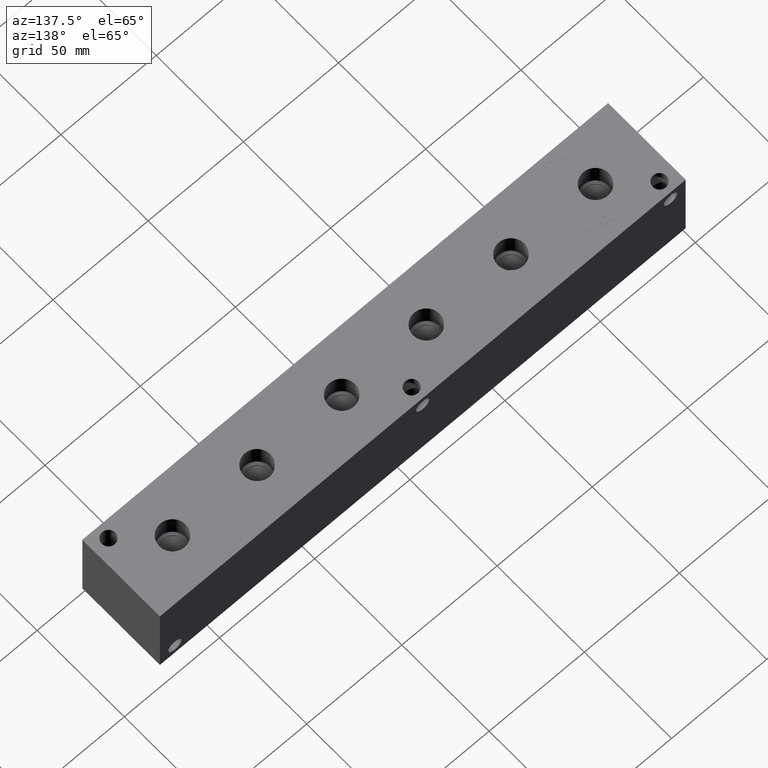
[diagram: clean part render]
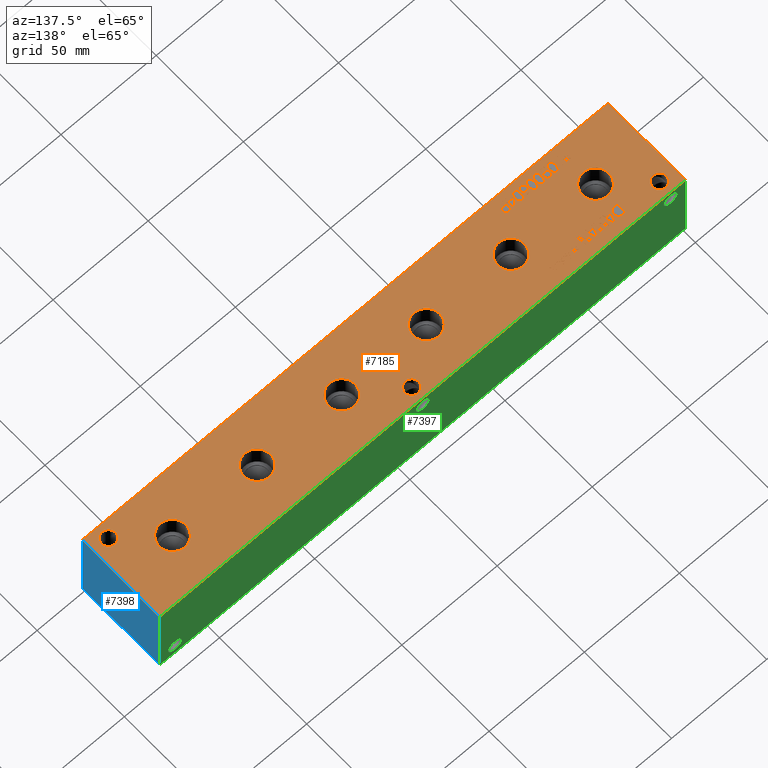
[diagram: same view with three faces highlighted in distinct colors, each labeled with its STEP entity id]
A machine part, auxiliary view with three faces highlighted in distinct colors.
Their STEP definitions:

[orange] entity #7185 — the highlighted planar face has unit normal (0, 0, 1).
#74=CIRCLE('',#7478,6.9342);
#75=CIRCLE('',#7479,6.9342);
#76=CIRCLE('',#7480,6.9342);
#77=CIRCLE('',#7481,6.9342);
#78=CIRCLE('',#7482,6.9342);
#79=CIRCLE('',#7483,6.9342);
#80=CIRCLE('',#7484,6.9342);
#81=CIRCLE('',#7485,6.9342);
#82=CIRCLE('',#7486,6.9342);
#83=CIRCLE('',#7487,6.9342);
#84=CIRCLE('',#7488,6.9342);
#85=CIRCLE('',#7489,6.9342);
#86=CIRCLE('',#7490,3.5687);
#87=CIRCLE('',#7491,3.5687);
#88=CIRCLE('',#7492,3.5687);
#89=CIRCLE('',#7493,3.5687);
#90=CIRCLE('',#7494,3.5687);
#91=CIRCLE('',#7495,3.5687);
#184=FACE_BOUND('',#1010,.T.);
#185=FACE_BOUND('',#1011,.T.);
#186=FACE_BOUND('',#1012,.T.);
#187=FACE_BOUND('',#1013,.T.);
#188=FACE_BOUND('',#1014,.T.);
#189=FACE_BOUND('',#1015,.T.);
#190=FACE_BOUND('',#1016,.T.);
#191=FACE_BOUND('',#1017,.T.);
#192=FACE_BOUND('',#1018,.T.);
#193=FACE_BOUND('',#1019,.T.);
#194=FACE_BOUND('',#1020,.T.);
#195=FACE_BOUND('',#1021,.T.);
#196=FACE_BOUND('',#1022,.T.);
#197=FACE_BOUND('',#1023,.T.);
#198=FACE_BOUND('',#1024,.T.);
#199=FACE_BOUND('',#1025,.T.);
#200=FACE_BOUND('',#1026,.T.);
#201=FACE_BOUND('',#1027,.T.);
#202=FACE_BOUND('',#1028,.T.);
#203=FACE_BOUND('',#1029,.T.);
#204=FACE_BOUND('',#1030,.T.);
#205=FACE_BOUND('',#1031,.T.);
#206=FACE_BOUND('',#1032,.T.);
#207=FACE_BOUND('',#1033,.T.);
#208=FACE_BOUND('',#1034,.T.);
#209=FACE_BOUND('',#1035,.T.);
#210=FACE_BOUND('',#1036,.T.);
#211=FACE_BOUND('',#1037,.T.);
#303=PLANE('',#7477);
#624=FACE_OUTER_BOUND('',#1009,.T.);
#1009=EDGE_LOOP('',(#5333,#5334,#5335,#5336));
#1010=EDGE_LOOP('',(#5337,#5338,#5339,#5340,#5341,#5342,#5343,#5344,#5345));
#1011=EDGE_LOOP('',(#5346,#5347,#5348,#5349,#5350,#5351,#5352,#5353,#5354,
#5355,#5356));
#1012=EDGE_LOOP('',(#5357,#5358,#5359,#5360));
#1013=EDGE_LOOP('',(#5361,#5362,#5363,#5364,#5365,#5366,#5367,#5368,#5369,
#5370,#5371,#5372,#5373,#5374));
#1014=EDGE_LOOP('',(#5375,#5376,#5377,#5378));
#1015=EDGE_LOOP('',(#5379,#5380,#5381,#5382));
#1016=EDGE_LOOP('',(#5383,#5384,#5385,#5386,#5387,#5388,#5389,#5390,#5391,
#5392,#5393,#5394,#5395,#5396));
#1017=EDGE_LOOP('',(#5397,#5398,#5399,#5400));
#1018=EDGE_LOOP('',(#5401,#5402,#5403,#5404,#5405,#5406,#5407,#5408,#5409,
#5410,#5411,#5412,#5413,#5414,#5415,#5416,#5417,#5418));
#1019=EDGE_LOOP('',(#5419,#5420,#5421,#5422,#5423,#5424,#5425,#5426,#5427,
#5428,#5429,#5430));
#1020=EDGE_LOOP('',(#5431,#5432));
#1021=EDGE_LOOP('',(#5433,#5434));
#1022=EDGE_LOOP('',(#5435,#5436));
#1023=EDGE_LOOP('',(#5437,#5438));
#1024=EDGE_LOOP('',(#5439,#5440));
#1025=EDGE_LOOP('',(#5441,#5442));
#1026=EDGE_LOOP('',(#5443,#5444));
#1027=EDGE_LOOP('',(#5445,#5446));
#1028=EDGE_LOOP('',(#5447,#5448));
#1029=EDGE_LOOP('',(#5449,#5450,#5451,#5452,#5453,#5454,#5455,#5456,#5457,
#5458,#5459,#5460,#5461,#5462,#5463,#5464,#5465,#5466));
#1030=EDGE_LOOP('',(#5467,#5468,#5469,#5470,#5471,#5472,#5473,#5474,#5475,
#5476,#5477,#5478,#5479,#5480,#5481,#5482,#5483,#5484));
#1031=EDGE_LOOP('',(#5485,#5486,#5487,#5488,#5489,#5490,#5491,#5492,#5493,
#5494));
#1032=EDGE_LOOP('',(#5495,#5496,#5497,#5498,#5499,#5500,#5501,#5502));
#1033=EDGE_LOOP('',(#5503,#5504,#5505,#5506,#5507,#5508,#5509));
#1034=EDGE_LOOP('',(#5510,#5511,#5512,#5513,#5514,#5515,#5516,#5517));
#1035=EDGE_LOOP('',(#5518,#5519,#5520,#5521,#5522,#5523,#5524,#5525,#5526,
#5527,#5528,#5529,#5530));
#1036=EDGE_LOOP('',(#5531,#5532,#5533,#5534,#5535,#5536,#5537,#5538,#5539,
#5540,#5541,#5542,#5543,#5544,#5545,#5546,#5547,#5548));
#1037=EDGE_LOOP('',(#5549,#5550,#5551,#5552,#5553,#5554,#5555,#5556,#5557,
#5558,#5559,#5560,#5561,#5562,#5563,#5564,#5565,#5566));
#1300=LINE('',#9397,#1989);
#1303=LINE('',#9403,#1992);
#1306=LINE('',#9409,#1995);
#1309=LINE('',#9415,#1998);
#1312=LINE('',#9421,#2001);
#1325=LINE('',#9482,#2014);
#1329=LINE('',#9490,#2018);
#1332=LINE('',#9496,#2021);
#1335=LINE('',#9502,#2024);
#1338=LINE('',#9508,#2027);
#1341=LINE('',#9514,#2030);
#1344=LINE('',#9520,#2033);
#1347=LINE('',#9526,#2036);
#1350=LINE('',#9532,#2039);
#1353=LINE('',#9538,#2042);
#1356=LINE('',#9543,#2045);
#1383=LINE('',#10008,#2072);
#1386=LINE('',#10014,#2075);
#1432=LINE('',#10840,#2121);
#1435=LINE('',#10846,#2124);
#1456=LINE('',#11213,#2145);
#1460=LINE('',#11221,#2149);
#1463=LINE('',#11227,#2152);
#1466=LINE('',#11233,#2155);
#1469=LINE('',#11239,#2158);
#1472=LINE('',#11245,#2161);
#1475=LINE('',#11251,#2164);
#1478=LINE('',#11257,#2167);
#1481=LINE('',#11263,#2170);
#1484=LINE('',#11269,#2173);
#1487=LINE('',#11275,#2176);
#1490=LINE('',#11281,#2179);
#1493=LINE('',#11287,#2182);
#1496=LINE('',#11293,#2185);
#1499=LINE('',#11299,#2188);
#1502=LINE('',#11305,#2191);
#1505=LINE('',#11311,#2194);
#1508=LINE('',#11316,#2197);
#1510=LINE('',#11322,#2199);
#1514=LINE('',#11330,#2203);
#1517=LINE('',#11336,#2206);
#1520=LINE('',#11342,#2209);
#1523=LINE('',#11348,#2212);
#1529=LINE('',#11411,#2218);
#1532=LINE('',#11417,#2221);
#1536=LINE('',#11460,#2225);
#1537=LINE('',#11462,#2226);
#1538=LINE('',#11464,#2227);
#1539=LINE('',#11465,#2228);
#1540=LINE('',#11504,#2229);
#1541=LINE('',#11506,#2230);
#1542=LINE('',#11508,#2231);
#1543=LINE('',#11510,#2232);
#1544=LINE('',#11512,#2233);
#1545=LINE('',#11514,#2234);
#1546=LINE('',#11516,#2235);
#1547=LINE('',#11518,#2236);
#1548=LINE('',#11520,#2237);
#1549=LINE('',#11522,#2238);
#1550=LINE('',#11524,#2239);
#1551=LINE('',#11526,#2240);
#1552=LINE('',#11528,#2241);
#1553=LINE('',#11530,#2242);
#1554=LINE('',#11532,#2243);
#1555=LINE('',#11534,#2244);
#1556=LINE('',#11536,#2245);
#1557=LINE('',#11537,#2246);
#1558=LINE('',#11540,#2247);
#1559=LINE('',#11542,#2248);
#1560=LINE('',#11544,#2249);
#1561=LINE('',#11546,#2250);
#1562=LINE('',#11548,#2251);
#1563=LINE('',#11550,#2252);
#1564=LINE('',#11552,#2253);
#1565=LINE('',#11554,#2254);
#1566=LINE('',#11556,#2255);
#1567=LINE('',#11558,#2256);
#1568=LINE('',#11560,#2257);
#1569=LINE('',#11562,#2258);
#1570=LINE('',#11564,#2259);
#1571=LINE('',#11566,#2260);
#1572=LINE('',#11568,#2261);
#1573=LINE('',#11570,#2262);
#1574=LINE('',#11572,#2263);
#1575=LINE('',#11573,#2264);
#1576=LINE('',#11576,#2265);
#1577=LINE('',#11578,#2266);
#1578=LINE('',#11580,#2267);
#1579=LINE('',#11582,#2268);
#1580=LINE('',#11584,#2269);
#1581=LINE('',#11586,#2270);
#1582=LINE('',#11588,#2271);
#1583=LINE('',#11590,#2272);
#1584=LINE('',#11592,#2273);
#1585=LINE('',#11593,#2274);
#1586=LINE('',#11596,#2275);
#1587=LINE('',#11598,#2276);
#1588=LINE('',#11600,#2277);
#1589=LINE('',#11602,#2278);
#1590=LINE('',#11604,#2279);
#1591=LINE('',#11606,#2280);
#1592=LINE('',#11608,#2281);
#1593=LINE('',#11609,#2282);
#1594=LINE('',#11627,#2283);
#1595=LINE('',#11629,#2284);
#1596=LINE('',#11631,#2285);
#1597=LINE('',#11638,#2286);
#1598=LINE('',#11640,#2287);
#1599=LINE('',#11642,#2288);
#1600=LINE('',#11644,#2289);
#1601=LINE('',#11646,#2290);
#1602=LINE('',#11648,#2291);
#1603=LINE('',#11650,#2292);
#1604=LINE('',#11651,#2293);
#1605=LINE('',#11654,#2294);
#1606=LINE('',#11656,#2295);
#1607=LINE('',#11658,#2296);
#1608=LINE('',#11660,#2297);
#1609=LINE('',#11662,#2298);
#1610=LINE('',#11664,#2299);
#1611=LINE('',#11666,#2300);
#1612=LINE('',#11668,#2301);
#1613=LINE('',#11670,#2302);
#1614=LINE('',#11672,#2303);
#1615=LINE('',#11674,#2304);
#1616=LINE('',#11676,#2305);
#1617=LINE('',#11677,#2306);
#1618=LINE('',#11680,#2307);
#1619=LINE('',#11682,#2308);
#1620=LINE('',#11684,#2309);
#1621=LINE('',#11686,#2310);
#1622=LINE('',#11688,#2311);
#1623=LINE('',#11690,#2312);
#1624=LINE('',#11692,#2313);
#1625=LINE('',#11694,#2314);
#1626=LINE('',#11696,#2315);
#1627=LINE('',#11698,#2316);
#1628=LINE('',#11700,#2317);
#1629=LINE('',#11702,#2318);
#1630=LINE('',#11704,#2319);
#1631=LINE('',#11706,#2320);
#1632=LINE('',#11708,#2321);
#1633=LINE('',#11710,#2322);
#1634=LINE('',#11712,#2323);
#1635=LINE('',#11713,#2324);
#1636=LINE('',#11716,#2325);
#1637=LINE('',#11718,#2326);
#1638=LINE('',#11720,#2327);
#1639=LINE('',#11722,#2328);
#1640=LINE('',#11724,#2329);
#1641=LINE('',#11726,#2330);
#1642=LINE('',#11728,#2331);
#1643=LINE('',#11730,#2332);
#1644=LINE('',#11732,#2333);
#1645=LINE('',#11734,#2334);
#1646=LINE('',#11736,#2335);
#1647=LINE('',#11738,#2336);
#1648=LINE('',#11740,#2337);
#1649=LINE('',#11742,#2338);
#1650=LINE('',#11744,#2339);
#1651=LINE('',#11746,#2340);
#1652=LINE('',#11748,#2341);
#1653=LINE('',#11749,#2342);
#1989=VECTOR('',#7826,10.);
#1992=VECTOR('',#7831,10.);
#1995=VECTOR('',#7836,10.);
#1998=VECTOR('',#7841,10.);
#2001=VECTOR('',#7846,10.);
#2014=VECTOR('',#7869,10.);
#2018=VECTOR('',#7875,10.);
#2021=VECTOR('',#7880,10.);
#2024=VECTOR('',#7885,10.);
#2027=VECTOR('',#7890,10.);
#2030=VECTOR('',#7895,10.);
#2033=VECTOR('',#7900,10.);
#2036=VECTOR('',#7905,10.);
#2039=VECTOR('',#7910,10.);
#2042=VECTOR('',#7915,10.);
#2045=VECTOR('',#7920,10.);
#2072=VECTOR('',#7953,10.);
#2075=VECTOR('',#7958,10.);
#2121=VECTOR('',#8012,10.);
#2124=VECTOR('',#8017,10.);
#2145=VECTOR('',#8044,10.);
#2149=VECTOR('',#8050,10.);
#2152=VECTOR('',#8055,10.);
#2155=VECTOR('',#8060,10.);
#2158=VECTOR('',#8065,10.);
#2161=VECTOR('',#8070,10.);
#2164=VECTOR('',#8075,10.);
#2167=VECTOR('',#8080,10.);
#2170=VECTOR('',#8085,10.);
#2173=VECTOR('',#8090,10.);
#2176=VECTOR('',#8095,10.);
#2179=VECTOR('',#8100,10.);
#2182=VECTOR('',#8105,10.);
#2185=VECTOR('',#8110,10.);
#2188=VECTOR('',#8115,10.);
#2191=VECTOR('',#8120,10.);
#2194=VECTOR('',#8125,10.);
#2197=VECTOR('',#8130,10.);
#2199=VECTOR('',#8136,10.);
#2203=VECTOR('',#8142,10.);
#2206=VECTOR('',#8147,10.);
#2209=VECTOR('',#8152,10.);
#2212=VECTOR('',#8157,10.);
#2218=VECTOR('',#8165,10.);
#2221=VECTOR('',#8170,10.);
#2225=VECTOR('',#8178,10.);
#2226=VECTOR('',#8179,10.);
#2227=VECTOR('',#8180,10.);
#2228=VECTOR('',#8181,10.);
#2229=VECTOR('',#8218,10.);
#2230=VECTOR('',#8219,10.);
#2231=VECTOR('',#8220,10.);
#2232=VECTOR('',#8221,10.);
#2233=VECTOR('',#8222,10.);
#2234=VECTOR('',#8223,10.);
#2235=VECTOR('',#8224,10.);
#2236=VECTOR('',#8225,10.);
#2237=VECTOR('',#8226,10.);
#2238=VECTOR('',#8227,10.);
#2239=VECTOR('',#8228,10.);
#2240=VECTOR('',#8229,10.);
#2241=VECTOR('',#8230,10.);
#2242=VECTOR('',#8231,10.);
#2243=VECTOR('',#8232,10.);
#2244=VECTOR('',#8233,10.);
#2245=VECTOR('',#8234,10.);
#2246=VECTOR('',#8235,10.);
#2247=VECTOR('',#8236,10.);
#2248=VECTOR('',#8237,10.);
#2249=VECTOR('',#8238,10.);
#2250=VECTOR('',#8239,10.);
#2251=VECTOR('',#8240,10.);
#2252=VECTOR('',#8241,10.);
#2253=VECTOR('',#8242,10.);
#2254=VECTOR('',#8243,10.);
#2255=VECTOR('',#8244,10.);
#2256=VECTOR('',#8245,10.);
#2257=VECTOR('',#8246,10.);
#2258=VECTOR('',#8247,10.);
#2259=VECTOR('',#8248,10.);
#2260=VECTOR('',#8249,10.);
#2261=VECTOR('',#8250,10.);
#2262=VECTOR('',#8251,10.);
#2263=VECTOR('',#8252,10.);
#2264=VECTOR('',#8253,10.);
#2265=VECTOR('',#8254,10.);
#2266=VECTOR('',#8255,10.);
#2267=VECTOR('',#8256,10.);
#2268=VECTOR('',#8257,10.);
#2269=VECTOR('',#8258,10.);
#2270=VECTOR('',#8259,10.);
#2271=VECTOR('',#8260,10.);
#2272=VECTOR('',#8261,10.);
#2273=VECTOR('',#8262,10.);
#2274=VECTOR('',#8263,10.);
#2275=VECTOR('',#8264,10.);
#2276=VECTOR('',#8265,10.);
#2277=VECTOR('',#8266,10.);
#2278=VECTOR('',#8267,10.);
#2279=VECTOR('',#8268,10.);
#2280=VECTOR('',#8269,10.);
#2281=VECTOR('',#8270,10.);
#2282=VECTOR('',#8271,10.);
#2283=VECTOR('',#8272,10.);
#2284=VECTOR('',#8273,10.);
#2285=VECTOR('',#8274,10.);
#2286=VECTOR('',#8275,10.);
#2287=VECTOR('',#8276,10.);
#2288=VECTOR('',#8277,10.);
#2289=VECTOR('',#8278,10.);
#2290=VECTOR('',#8279,10.);
#2291=VECTOR('',#8280,10.);
#2292=VECTOR('',#8281,10.);
#2293=VECTOR('',#8282,10.);
#2294=VECTOR('',#8283,10.);
#2295=VECTOR('',#8284,10.);
#2296=VECTOR('',#8285,10.);
#2297=VECTOR('',#8286,10.);
#2298=VECTOR('',#8287,10.);
#2299=VECTOR('',#8288,10.);
#2300=VECTOR('',#8289,10.);
#2301=VECTOR('',#8290,10.);
#2302=VECTOR('',#8291,10.);
#2303=VECTOR('',#8292,10.);
#2304=VECTOR('',#8293,10.);
#2305=VECTOR('',#8294,10.);
#2306=VECTOR('',#8295,10.);
#2307=VECTOR('',#8296,10.);
#2308=VECTOR('',#8297,10.);
#2309=VECTOR('',#8298,10.);
#2310=VECTOR('',#8299,10.);
#2311=VECTOR('',#8300,10.);
#2312=VECTOR('',#8301,10.);
#2313=VECTOR('',#8302,10.);
#2314=VECTOR('',#8303,10.);
#2315=VECTOR('',#8304,10.);
#2316=VECTOR('',#8305,10.);
#2317=VECTOR('',#8306,10.);
#2318=VECTOR('',#8307,10.);
#2319=VECTOR('',#8308,10.);
#2320=VECTOR('',#8309,10.);
#2321=VECTOR('',#8310,10.);
#2322=VECTOR('',#8311,10.);
#2323=VECTOR('',#8312,10.);
#2324=VECTOR('',#8313,10.);
#2325=VECTOR('',#8314,10.);
#2326=VECTOR('',#8315,10.);
#2327=VECTOR('',#8316,10.);
#2328=VECTOR('',#8317,10.);
#2329=VECTOR('',#8318,10.);
#2330=VECTOR('',#8319,10.);
#2331=VECTOR('',#8320,10.);
#2332=VECTOR('',#8321,10.);
#2333=VECTOR('',#8322,10.);
#2334=VECTOR('',#8323,10.);
#2335=VECTOR('',#8324,10.);
#2336=VECTOR('',#8325,10.);
#2337=VECTOR('',#8326,10.);
#2338=VECTOR('',#8327,10.);
#2339=VECTOR('',#8328,10.);
#2340=VECTOR('',#8329,10.);
#2341=VECTOR('',#8330,10.);
#2342=VECTOR('',#8331,10.);
#2670=B_SPLINE_CURVE_WITH_KNOTS('',2,(#9364,#9365,#9366,#9367),
 .UNSPECIFIED.,.F.,.F.,(3,1,3),(0.,1.,2.),.UNSPECIFIED.);
#2672=B_SPLINE_CURVE_WITH_KNOTS('',2,(#9385,#9386,#9387,#9388),
 .UNSPECIFIED.,.F.,.F.,(3,1,3),(0.,1.,2.),.UNSPECIFIED.);
#2674=B_SPLINE_CURVE_WITH_KNOTS('',2,(#9434,#9435,#9436,#9437),
 .UNSPECIFIED.,.F.,.F.,(3,1,3),(0.,1.,2.),.UNSPECIFIED.);
#2676=B_SPLINE_CURVE_WITH_KNOTS('',2,(#9452,#9453,#9454,#9455),
 .UNSPECIFIED.,.F.,.F.,(3,1,3),(0.,1.,2.),.UNSPECIFIED.);
#2694=B_SPLINE_CURVE_WITH_KNOTS('',2,(#9708,#9709,#9710,#9711),
 .UNSPECIFIED.,.F.,.F.,(3,1,3),(0.,1.,2.),.UNSPECIFIED.);
#2696=B_SPLINE_CURVE_WITH_KNOTS('',2,(#9729,#9730,#9731,#9732),
 .UNSPECIFIED.,.F.,.F.,(3,1,3),(0.,1.,2.),.UNSPECIFIED.);
#2698=B_SPLINE_CURVE_WITH_KNOTS('',2,(#9748,#9749,#9750,#9751),
 .UNSPECIFIED.,.F.,.F.,(3,1,3),(0.,1.,2.),.UNSPECIFIED.);
#2700=B_SPLINE_CURVE_WITH_KNOTS('',2,(#9766,#9767,#9768,#9769),
 .UNSPECIFIED.,.F.,.F.,(3,1,3),(0.,1.,2.),.UNSPECIFIED.);
#2716=B_SPLINE_CURVE_WITH_KNOTS('',2,(#9918,#9919,#9920,#9921),
 .UNSPECIFIED.,.F.,.F.,(3,1,3),(0.,1.,2.),.UNSPECIFIED.);
#2718=B_SPLINE_CURVE_WITH_KNOTS('',2,(#9939,#9940,#9941,#9942),
 .UNSPECIFIED.,.F.,.F.,(3,1,3),(0.,1.,2.),.UNSPECIFIED.);
#2720=B_SPLINE_CURVE_WITH_KNOTS('',2,(#9958,#9959,#9960,#9961),
 .UNSPECIFIED.,.F.,.F.,(3,1,3),(0.,1.,2.),.UNSPECIFIED.);
#2722=B_SPLINE_CURVE_WITH_KNOTS('',2,(#9977,#9978,#9979,#9980),
 .UNSPECIFIED.,.F.,.F.,(3,1,3),(0.,1.,2.),.UNSPECIFIED.);
#2724=B_SPLINE_CURVE_WITH_KNOTS('',2,(#9996,#9997,#9998,#9999),
 .UNSPECIFIED.,.F.,.F.,(3,1,3),(0.,1.,2.),.UNSPECIFIED.);
#2726=B_SPLINE_CURVE_WITH_KNOTS('',2,(#10027,#10028,#10029,#10030),
 .UNSPECIFIED.,.F.,.F.,(3,1,3),(0.,1.,2.),.UNSPECIFIED.);
#2728=B_SPLINE_CURVE_WITH_KNOTS('',2,(#10046,#10047,#10048,#10049),
 .UNSPECIFIED.,.F.,.F.,(3,1,3),(0.,1.,2.),.UNSPECIFIED.);
#2730=B_SPLINE_CURVE_WITH_KNOTS('',2,(#10065,#10066,#10067,#10068),
 .UNSPECIFIED.,.F.,.F.,(3,1,3),(0.,1.,2.),.UNSPECIFIED.);
#2732=B_SPLINE_CURVE_WITH_KNOTS('',2,(#10084,#10085,#10086,#10087),
 .UNSPECIFIED.,.F.,.F.,(3,1,3),(0.,1.,2.),.UNSPECIFIED.);
#2734=B_SPLINE_CURVE_WITH_KNOTS('',2,(#10103,#10104,#10105,#10106),
 .UNSPECIFIED.,.F.,.F.,(3,1,3),(0.,1.,2.),.UNSPECIFIED.);
#2736=B_SPLINE_CURVE_WITH_KNOTS('',2,(#10122,#10123,#10124,#10125),
 .UNSPECIFIED.,.F.,.F.,(3,1,3),(0.,1.,2.),.UNSPECIFIED.);
#2738=B_SPLINE_CURVE_WITH_KNOTS('',2,(#10140,#10141,#10142,#10143),
 .UNSPECIFIED.,.F.,.F.,(3,1,3),(0.,1.,2.),.UNSPECIFIED.);
#2756=B_SPLINE_CURVE_WITH_KNOTS('',2,(#10311,#10312,#10313,#10314),
 .UNSPECIFIED.,.F.,.F.,(3,1,3),(0.,1.,2.),.UNSPECIFIED.);
#2758=B_SPLINE_CURVE_WITH_KNOTS('',2,(#10332,#10333,#10334,#10335),
 .UNSPECIFIED.,.F.,.F.,(3,1,3),(0.,1.,2.),.UNSPECIFIED.);
#2760=B_SPLINE_CURVE_WITH_KNOTS('',2,(#10351,#10352,#10353,#10354),
 .UNSPECIFIED.,.F.,.F.,(3,1,3),(0.,1.,2.),.UNSPECIFIED.);
#2762=B_SPLINE_CURVE_WITH_KNOTS('',2,(#10369,#10370,#10371,#10372),
 .UNSPECIFIED.,.F.,.F.,(3,1,3),(0.,1.,2.),.UNSPECIFIED.);
#2780=B_SPLINE_CURVE_WITH_KNOTS('',2,(#10540,#10541,#10542,#10543),
 .UNSPECIFIED.,.F.,.F.,(3,1,3),(0.,1.,2.),.UNSPECIFIED.);
#2782=B_SPLINE_CURVE_WITH_KNOTS('',2,(#10561,#10562,#10563,#10564),
 .UNSPECIFIED.,.F.,.F.,(3,1,3),(0.,1.,2.),.UNSPECIFIED.);
#2784=B_SPLINE_CURVE_WITH_KNOTS('',2,(#10580,#10581,#10582,#10583),
 .UNSPECIFIED.,.F.,.F.,(3,1,3),(0.,1.,2.),.UNSPECIFIED.);
#2786=B_SPLINE_CURVE_WITH_KNOTS('',2,(#10598,#10599,#10600,#10601),
 .UNSPECIFIED.,.F.,.F.,(3,1,3),(0.,1.,2.),.UNSPECIFIED.);
#2802=B_SPLINE_CURVE_WITH_KNOTS('',2,(#10750,#10751,#10752,#10753),
 .UNSPECIFIED.,.F.,.F.,(3,1,3),(0.,1.,2.),.UNSPECIFIED.);
#2804=B_SPLINE_CURVE_WITH_KNOTS('',2,(#10771,#10772,#10773,#10774),
 .UNSPECIFIED.,.F.,.F.,(3,1,3),(0.,1.,2.),.UNSPECIFIED.);
#2806=B_SPLINE_CURVE_WITH_KNOTS('',2,(#10790,#10791,#10792,#10793),
 .UNSPECIFIED.,.F.,.F.,(3,1,3),(0.,1.,2.),.UNSPECIFIED.);
#2808=B_SPLINE_CURVE_WITH_KNOTS('',2,(#10809,#10810,#10811,#10812),
 .UNSPECIFIED.,.F.,.F.,(3,1,3),(0.,1.,2.),.UNSPECIFIED.);
#2810=B_SPLINE_CURVE_WITH_KNOTS('',2,(#10828,#10829,#10830,#10831),
 .UNSPECIFIED.,.F.,.F.,(3,1,3),(0.,1.,2.),.UNSPECIFIED.);
#2812=B_SPLINE_CURVE_WITH_KNOTS('',2,(#10859,#10860,#10861,#10862),
 .UNSPECIFIED.,.F.,.F.,(3,1,3),(0.,1.,2.),.UNSPECIFIED.);
#2814=B_SPLINE_CURVE_WITH_KNOTS('',2,(#10878,#10879,#10880,#10881),
 .UNSPECIFIED.,.F.,.F.,(3,1,3),(0.,1.,2.),.UNSPECIFIED.);
#2816=B_SPLINE_CURVE_WITH_KNOTS('',2,(#10897,#10898,#10899,#10900),
 .UNSPECIFIED.,.F.,.F.,(3,1,3),(0.,1.,2.),.UNSPECIFIED.);
#2818=B_SPLINE_CURVE_WITH_KNOTS('',2,(#10916,#10917,#10918,#10919),
 .UNSPECIFIED.,.F.,.F.,(3,1,3),(0.,1.,2.),.UNSPECIFIED.);
#2820=B_SPLINE_CURVE_WITH_KNOTS('',2,(#10935,#10936,#10937,#10938),
 .UNSPECIFIED.,.F.,.F.,(3,1,3),(0.,1.,2.),.UNSPECIFIED.);
#2822=B_SPLINE_CURVE_WITH_KNOTS('',2,(#10954,#10955,#10956,#10957),
 .UNSPECIFIED.,.F.,.F.,(3,1,3),(0.,1.,2.),.UNSPECIFIED.);
#2824=B_SPLINE_CURVE_WITH_KNOTS('',2,(#10972,#10973,#10974,#10975),
 .UNSPECIFIED.,.F.,.F.,(3,1,3),(0.,1.,2.),.UNSPECIFIED.);
#2842=B_SPLINE_CURVE_WITH_KNOTS('',2,(#11143,#11144,#11145,#11146),
 .UNSPECIFIED.,.F.,.F.,(3,1,3),(0.,1.,2.),.UNSPECIFIED.);
#2844=B_SPLINE_CURVE_WITH_KNOTS('',2,(#11164,#11165,#11166,#11167),
 .UNSPECIFIED.,.F.,.F.,(3,1,3),(0.,1.,2.),.UNSPECIFIED.);
#2846=B_SPLINE_CURVE_WITH_KNOTS('',2,(#11183,#11184,#11185,#11186),
 .UNSPECIFIED.,.F.,.F.,(3,1,3),(0.,1.,2.),.UNSPECIFIED.);
#2848=B_SPLINE_CURVE_WITH_KNOTS('',2,(#11201,#11202,#11203,#11204),
 .UNSPECIFIED.,.F.,.F.,(3,1,3),(0.,1.,2.),.UNSPECIFIED.);
#2850=B_SPLINE_CURVE_WITH_KNOTS('',2,(#11361,#11362,#11363,#11364),
 .UNSPECIFIED.,.F.,.F.,(3,1,3),(0.,1.,2.),.UNSPECIFIED.);
#2852=B_SPLINE_CURVE_WITH_KNOTS('',2,(#11380,#11381,#11382,#11383),
 .UNSPECIFIED.,.F.,.F.,(3,1,3),(0.,1.,2.),.UNSPECIFIED.);
#2854=B_SPLINE_CURVE_WITH_KNOTS('',2,(#11399,#11400,#11401,#11402),
 .UNSPECIFIED.,.F.,.F.,(3,1,3),(0.,1.,2.),.UNSPECIFIED.);
#2856=B_SPLINE_CURVE_WITH_KNOTS('',2,(#11430,#11431,#11432,#11433),
 .UNSPECIFIED.,.F.,.F.,(3,1,3),(0.,1.,2.),.UNSPECIFIED.);
#2858=B_SPLINE_CURVE_WITH_KNOTS('',2,(#11448,#11449,#11450,#11451),
 .UNSPECIFIED.,.F.,.F.,(3,1,3),(0.,1.,2.),.UNSPECIFIED.);
#2860=B_SPLINE_CURVE_WITH_KNOTS('',2,(#11612,#11613,#11614,#11615),
 .UNSPECIFIED.,.F.,.F.,(3,1,3),(0.,1.,2.),.UNSPECIFIED.);
#2861=B_SPLINE_CURVE_WITH_KNOTS('',2,(#11617,#11618,#11619,#11620),
 .UNSPECIFIED.,.F.,.F.,(3,1,3),(0.,1.,2.),.UNSPECIFIED.);
#2862=B_SPLINE_CURVE_WITH_KNOTS('',2,(#11622,#11623,#11624,#11625),
 .UNSPECIFIED.,.F.,.F.,(3,1,3),(0.,1.,2.),.UNSPECIFIED.);
#2863=B_SPLINE_CURVE_WITH_KNOTS('',2,(#11632,#11633,#11634,#11635),
 .UNSPECIFIED.,.F.,.F.,(3,1,3),(0.,1.,2.),.UNSPECIFIED.);
#2890=VERTEX_POINT('',#9362);
#2891=VERTEX_POINT('',#9363);
#2894=VERTEX_POINT('',#9384);
#2896=VERTEX_POINT('',#9396);
#2898=VERTEX_POINT('',#9402);
#2900=VERTEX_POINT('',#9408);
#2902=VERTEX_POINT('',#9414);
#2904=VERTEX_POINT('',#9420);
#2906=VERTEX_POINT('',#9433);
#2914=VERTEX_POINT('',#9480);
#2915=VERTEX_POINT('',#9481);
#2918=VERTEX_POINT('',#9489);
#2920=VERTEX_POINT('',#9495);
#2922=VERTEX_POINT('',#9501);
#2924=VERTEX_POINT('',#9507);
#2926=VERTEX_POINT('',#9513);
#2928=VERTEX_POINT('',#9519);
#2930=VERTEX_POINT('',#9525);
#2932=VERTEX_POINT('',#9531);
#2934=VERTEX_POINT('',#9537);
#2952=VERTEX_POINT('',#9706);
#2953=VERTEX_POINT('',#9707);
#2956=VERTEX_POINT('',#9728);
#2958=VERTEX_POINT('',#9747);
#2974=VERTEX_POINT('',#9916);
#2975=VERTEX_POINT('',#9917);
#2978=VERTEX_POINT('',#9938);
#2980=VERTEX_POINT('',#9957);
#2982=VERTEX_POINT('',#9976);
#2984=VERTEX_POINT('',#9995);
#2986=VERTEX_POINT('',#10007);
#2988=VERTEX_POINT('',#10013);
#2990=VERTEX_POINT('',#10026);
#2992=VERTEX_POINT('',#10045);
#2994=VERTEX_POINT('',#10064);
#2996=VERTEX_POINT('',#10083);
#2998=VERTEX_POINT('',#10102);
#3000=VERTEX_POINT('',#10121);
#3018=VERTEX_POINT('',#10309);
#3019=VERTEX_POINT('',#10310);
#3022=VERTEX_POINT('',#10331);
#3024=VERTEX_POINT('',#10350);
#3042=VERTEX_POINT('',#10538);
#3043=VERTEX_POINT('',#10539);
#3046=VERTEX_POINT('',#10560);
#3048=VERTEX_POINT('',#10579);
#3064=VERTEX_POINT('',#10748);
#3065=VERTEX_POINT('',#10749);
#3068=VERTEX_POINT('',#10770);
#3070=VERTEX_POINT('',#10789);
#3072=VERTEX_POINT('',#10808);
#3074=VERTEX_POINT('',#10827);
#3076=VERTEX_POINT('',#10839);
#3078=VERTEX_POINT('',#10845);
#3080=VERTEX_POINT('',#10858);
#3082=VERTEX_POINT('',#10877);
#3084=VERTEX_POINT('',#10896);
#3086=VERTEX_POINT('',#10915);
#3088=VERTEX_POINT('',#10934);
#3090=VERTEX_POINT('',#10953);
#3108=VERTEX_POINT('',#11141);
#3109=VERTEX_POINT('',#11142);
#3112=VERTEX_POINT('',#11163);
#3114=VERTEX_POINT('',#11182);
#3116=VERTEX_POINT('',#11211);
#3117=VERTEX_POINT('',#11212);
#3120=VERTEX_POINT('',#11220);
#3122=VERTEX_POINT('',#11226);
#3124=VERTEX_POINT('',#11232);
#3126=VERTEX_POINT('',#11238);
#3128=VERTEX_POINT('',#11244);
#3130=VERTEX_POINT('',#11250);
#3132=VERTEX_POINT('',#11256);
#3134=VERTEX_POINT('',#11262);
#3136=VERTEX_POINT('',#11268);
#3138=VERTEX_POINT('',#11274);
#3140=VERTEX_POINT('',#11280);
#3142=VERTEX_POINT('',#11286);
#3144=VERTEX_POINT('',#11292);
#3146=VERTEX_POINT('',#11298);
#3148=VERTEX_POINT('',#11304);
#3150=VERTEX_POINT('',#11310);
#3152=VERTEX_POINT('',#11320);
#3153=VERTEX_POINT('',#11321);
#3156=VERTEX_POINT('',#11329);
#3158=VERTEX_POINT('',#11335);
#3160=VERTEX_POINT('',#11341);
#3162=VERTEX_POINT('',#11347);
#3164=VERTEX_POINT('',#11360);
#3166=VERTEX_POINT('',#11379);
#3168=VERTEX_POINT('',#11398);
#3170=VERTEX_POINT('',#11410);
#3172=VERTEX_POINT('',#11416);
#3174=VERTEX_POINT('',#11429);
#3176=VERTEX_POINT('',#11458);
#3177=VERTEX_POINT('',#11459);
#3178=VERTEX_POINT('',#11461);
#3179=VERTEX_POINT('',#11463);
#3180=VERTEX_POINT('',#11466);
#3181=VERTEX_POINT('',#11467);
#3182=VERTEX_POINT('',#11470);
#3183=VERTEX_POINT('',#11471);
#3184=VERTEX_POINT('',#11474);
#3185=VERTEX_POINT('',#11475);
#3186=VERTEX_POINT('',#11478);
#3187=VERTEX_POINT('',#11479);
#3188=VERTEX_POINT('',#11482);
#3189=VERTEX_POINT('',#11483);
#3190=VERTEX_POINT('',#11486);
#3191=VERTEX_POINT('',#11487);
#3192=VERTEX_POINT('',#11490);
#3193=VERTEX_POINT('',#11491);
#3194=VERTEX_POINT('',#11494);
#3195=VERTEX_POINT('',#11495);
#3196=VERTEX_POINT('',#11498);
#3197=VERTEX_POINT('',#11499);
#3198=VERTEX_POINT('',#11502);
#3199=VERTEX_POINT('',#11503);
#3200=VERTEX_POINT('',#11505);
#3201=VERTEX_POINT('',#11507);
#3202=VERTEX_POINT('',#11509);
#3203=VERTEX_POINT('',#11511);
#3204=VERTEX_POINT('',#11513);
#3205=VERTEX_POINT('',#11515);
#3206=VERTEX_POINT('',#11517);
#3207=VERTEX_POINT('',#11519);
#3208=VERTEX_POINT('',#11521);
#3209=VERTEX_POINT('',#11523);
#3210=VERTEX_POINT('',#11525);
#3211=VERTEX_POINT('',#11527);
#3212=VERTEX_POINT('',#11529);
#3213=VERTEX_POINT('',#11531);
#3214=VERTEX_POINT('',#11533);
#3215=VERTEX_POINT('',#11535);
#3216=VERTEX_POINT('',#11538);
#3217=VERTEX_POINT('',#11539);
#3218=VERTEX_POINT('',#11541);
#3219=VERTEX_POINT('',#11543);
#3220=VERTEX_POINT('',#11545);
#3221=VERTEX_POINT('',#11547);
#3222=VERTEX_POINT('',#11549);
#3223=VERTEX_POINT('',#11551);
#3224=VERTEX_POINT('',#11553);
#3225=VERTEX_POINT('',#11555);
#3226=VERTEX_POINT('',#11557);
#3227=VERTEX_POINT('',#11559);
#3228=VERTEX_POINT('',#11561);
#3229=VERTEX_POINT('',#11563);
#3230=VERTEX_POINT('',#11565);
#3231=VERTEX_POINT('',#11567);
#3232=VERTEX_POINT('',#11569);
#3233=VERTEX_POINT('',#11571);
#3234=VERTEX_POINT('',#11574);
#3235=VERTEX_POINT('',#11575);
#3236=VERTEX_POINT('',#11577);
#3237=VERTEX_POINT('',#11579);
#3238=VERTEX_POINT('',#11581);
#3239=VERTEX_POINT('',#11583);
#3240=VERTEX_POINT('',#11585);
#3241=VERTEX_POINT('',#11587);
#3242=VERTEX_POINT('',#11589);
#3243=VERTEX_POINT('',#11591);
#3244=VERTEX_POINT('',#11594);
#3245=VERTEX_POINT('',#11595);
#3246=VERTEX_POINT('',#11597);
#3247=VERTEX_POINT('',#11599);
#3248=VERTEX_POINT('',#11601);
#3249=VERTEX_POINT('',#11603);
#3250=VERTEX_POINT('',#11605);
#3251=VERTEX_POINT('',#11607);
#3252=VERTEX_POINT('',#11610);
#3253=VERTEX_POINT('',#11611);
#3254=VERTEX_POINT('',#11616);
#3255=VERTEX_POINT('',#11621);
#3256=VERTEX_POINT('',#11626);
#3257=VERTEX_POINT('',#11628);
#3258=VERTEX_POINT('',#11630);
#3259=VERTEX_POINT('',#11636);
#3260=VERTEX_POINT('',#11637);
#3261=VERTEX_POINT('',#11639);
#3262=VERTEX_POINT('',#11641);
#3263=VERTEX_POINT('',#11643);
#3264=VERTEX_POINT('',#11645);
#3265=VERTEX_POINT('',#11647);
#3266=VERTEX_POINT('',#11649);
#3267=VERTEX_POINT('',#11652);
#3268=VERTEX_POINT('',#11653);
#3269=VERTEX_POINT('',#11655);
#3270=VERTEX_POINT('',#11657);
#3271=VERTEX_POINT('',#11659);
#3272=VERTEX_POINT('',#11661);
#3273=VERTEX_POINT('',#11663);
#3274=VERTEX_POINT('',#11665);
#3275=VERTEX_POINT('',#11667);
#3276=VERTEX_POINT('',#11669);
#3277=VERTEX_POINT('',#11671);
#3278=VERTEX_POINT('',#11673);
#3279=VERTEX_POINT('',#11675);
#3280=VERTEX_POINT('',#11678);
#3281=VERTEX_POINT('',#11679);
#3282=VERTEX_POINT('',#11681);
#3283=VERTEX_POINT('',#11683);
#3284=VERTEX_POINT('',#11685);
#3285=VERTEX_POINT('',#11687);
#3286=VERTEX_POINT('',#11689);
#3287=VERTEX_POINT('',#11691);
#3288=VERTEX_POINT('',#11693);
#3289=VERTEX_POINT('',#11695);
#3290=VERTEX_POINT('',#11697);
#3291=VERTEX_POINT('',#11699);
#3292=VERTEX_POINT('',#11701);
#3293=VERTEX_POINT('',#11703);
#3294=VERTEX_POINT('',#11705);
#3295=VERTEX_POINT('',#11707);
#3296=VERTEX_POINT('',#11709);
#3297=VERTEX_POINT('',#11711);
#3298=VERTEX_POINT('',#11714);
#3299=VERTEX_POINT('',#11715);
#3300=VERTEX_POINT('',#11717);
#3301=VERTEX_POINT('',#11719);
#3302=VERTEX_POINT('',#11721);
#3303=VERTEX_POINT('',#11723);
#3304=VERTEX_POINT('',#11725);
#3305=VERTEX_POINT('',#11727);
#3306=VERTEX_POINT('',#11729);
#3307=VERTEX_POINT('',#11731);
#3308=VERTEX_POINT('',#11733);
#3309=VERTEX_POINT('',#11735);
#3310=VERTEX_POINT('',#11737);
#3311=VERTEX_POINT('',#11739);
#3312=VERTEX_POINT('',#11741);
#3313=VERTEX_POINT('',#11743);
#3314=VERTEX_POINT('',#11745);
#3315=VERTEX_POINT('',#11747);
#3587=EDGE_CURVE('',#2890,#2891,#2670,.T.);
#3591=EDGE_CURVE('',#2894,#2890,#2672,.T.);
#3594=EDGE_CURVE('',#2896,#2894,#1300,.T.);
#3597=EDGE_CURVE('',#2898,#2896,#1303,.T.);
#3600=EDGE_CURVE('',#2900,#2898,#1306,.T.);
#3603=EDGE_CURVE('',#2902,#2900,#1309,.T.);
#3606=EDGE_CURVE('',#2904,#2902,#1312,.T.);
#3609=EDGE_CURVE('',#2906,#2904,#2674,.T.);
#3612=EDGE_CURVE('',#2891,#2906,#2676,.T.);
#3623=EDGE_CURVE('',#2914,#2915,#1325,.T.);
#3627=EDGE_CURVE('',#2918,#2914,#1329,.T.);
#3630=EDGE_CURVE('',#2920,#2918,#1332,.T.);
#3633=EDGE_CURVE('',#2922,#2920,#1335,.T.);
#3636=EDGE_CURVE('',#2924,#2922,#1338,.T.);
#3639=EDGE_CURVE('',#2926,#2924,#1341,.T.);
#3642=EDGE_CURVE('',#2928,#2926,#1344,.T.);
#3645=EDGE_CURVE('',#2930,#2928,#1347,.T.);
#3648=EDGE_CURVE('',#2932,#2930,#1350,.T.);
#3651=EDGE_CURVE('',#2934,#2932,#1353,.T.);
#3654=EDGE_CURVE('',#2915,#2934,#1356,.T.);
#3680=EDGE_CURVE('',#2952,#2953,#2694,.T.);
#3684=EDGE_CURVE('',#2956,#2952,#2696,.T.);
#3687=EDGE_CURVE('',#2958,#2956,#2698,.T.);
#3690=EDGE_CURVE('',#2953,#2958,#2700,.T.);
#3713=EDGE_CURVE('',#2974,#2975,#2716,.T.);
#3717=EDGE_CURVE('',#2978,#2974,#2718,.T.);
#3720=EDGE_CURVE('',#2980,#2978,#2720,.T.);
#3723=EDGE_CURVE('',#2982,#2980,#2722,.T.);
#3726=EDGE_CURVE('',#2984,#2982,#2724,.T.);
#3729=EDGE_CURVE('',#2986,#2984,#1383,.T.);
#3732=EDGE_CURVE('',#2988,#2986,#1386,.T.);
#3735=EDGE_CURVE('',#2990,#2988,#2726,.T.);
#3738=EDGE_CURVE('',#2992,#2990,#2728,.T.);
#3741=EDGE_CURVE('',#2994,#2992,#2730,.T.);
#3744=EDGE_CURVE('',#2996,#2994,#2732,.T.);
#3747=EDGE_CURVE('',#2998,#2996,#2734,.T.);
#3750=EDGE_CURVE('',#3000,#2998,#2736,.T.);
#3753=EDGE_CURVE('',#2975,#3000,#2738,.T.);
#3779=EDGE_CURVE('',#3018,#3019,#2756,.T.);
#3783=EDGE_CURVE('',#3022,#3018,#2758,.T.);
#3786=EDGE_CURVE('',#3024,#3022,#2760,.T.);
#3789=EDGE_CURVE('',#3019,#3024,#2762,.T.);
#3815=EDGE_CURVE('',#3042,#3043,#2780,.T.);
#3819=EDGE_CURVE('',#3046,#3042,#2782,.T.);
#3822=EDGE_CURVE('',#3048,#3046,#2784,.T.);
#3825=EDGE_CURVE('',#3043,#3048,#2786,.T.);
#3848=EDGE_CURVE('',#3064,#3065,#2802,.T.);
#3852=EDGE_CURVE('',#3068,#3064,#2804,.T.);
#3855=EDGE_CURVE('',#3070,#3068,#2806,.T.);
#3858=EDGE_CURVE('',#3072,#3070,#2808,.T.);
#3861=EDGE_CURVE('',#3074,#3072,#2810,.T.);
#3864=EDGE_CURVE('',#3076,#3074,#1432,.T.);
#3867=EDGE_CURVE('',#3078,#3076,#1435,.T.);
#3870=EDGE_CURVE('',#3080,#3078,#2812,.T.);
#3873=EDGE_CURVE('',#3082,#3080,#2814,.T.);
#3876=EDGE_CURVE('',#3084,#3082,#2816,.T.);
#3879=EDGE_CURVE('',#3086,#3084,#2818,.T.);
#3882=EDGE_CURVE('',#3088,#3086,#2820,.T.);
#3885=EDGE_CURVE('',#3090,#3088,#2822,.T.);
#3888=EDGE_CURVE('',#3065,#3090,#2824,.T.);
#3914=EDGE_CURVE('',#3108,#3109,#2842,.T.);
#3918=EDGE_CURVE('',#3112,#3108,#2844,.T.);
#3921=EDGE_CURVE('',#3114,#3112,#2846,.T.);
#3924=EDGE_CURVE('',#3109,#3114,#2848,.T.);
#3926=EDGE_CURVE('',#3116,#3117,#1456,.T.);
#3930=EDGE_CURVE('',#3120,#3116,#1460,.T.);
#3933=EDGE_CURVE('',#3122,#3120,#1463,.T.);
#3936=EDGE_CURVE('',#3124,#3122,#1466,.T.);
#3939=EDGE_CURVE('',#3126,#3124,#1469,.T.);
#3942=EDGE_CURVE('',#3128,#3126,#1472,.T.);
#3945=EDGE_CURVE('',#3130,#3128,#1475,.T.);
#3948=EDGE_CURVE('',#3132,#3130,#1478,.T.);
#3951=EDGE_CURVE('',#3134,#3132,#1481,.T.);
#3954=EDGE_CURVE('',#3136,#3134,#1484,.T.);
#3957=EDGE_CURVE('',#3138,#3136,#1487,.T.);
#3960=EDGE_CURVE('',#3140,#3138,#1490,.T.);
#3963=EDGE_CURVE('',#3142,#3140,#1493,.T.);
#3966=EDGE_CURVE('',#3144,#3142,#1496,.T.);
#3969=EDGE_CURVE('',#3146,#3144,#1499,.T.);
#3972=EDGE_CURVE('',#3148,#3146,#1502,.T.);
#3975=EDGE_CURVE('',#3150,#3148,#1505,.T.);
#3978=EDGE_CURVE('',#3117,#3150,#1508,.T.);
#3980=EDGE_CURVE('',#3152,#3153,#1510,.T.);
#3984=EDGE_CURVE('',#3156,#3152,#1514,.T.);
#3987=EDGE_CURVE('',#3158,#3156,#1517,.T.);
#3990=EDGE_CURVE('',#3160,#3158,#1520,.T.);
#3993=EDGE_CURVE('',#3162,#3160,#1523,.T.);
#3996=EDGE_CURVE('',#3164,#3162,#2850,.T.);
#3999=EDGE_CURVE('',#3166,#3164,#2852,.T.);
#4002=EDGE_CURVE('',#3168,#3166,#2854,.T.);
#4005=EDGE_CURVE('',#3170,#3168,#1529,.T.);
#4008=EDGE_CURVE('',#3172,#3170,#1532,.T.);
#4011=EDGE_CURVE('',#3174,#3172,#2856,.T.);
#4014=EDGE_CURVE('',#3153,#3174,#2858,.T.);
#4016=EDGE_CURVE('',#3176,#3177,#1536,.T.);
#4017=EDGE_CURVE('',#3177,#3178,#1537,.T.);
#4018=EDGE_CURVE('',#3178,#3179,#1538,.T.);
#4019=EDGE_CURVE('',#3179,#3176,#1539,.T.);
#4020=EDGE_CURVE('',#3180,#3181,#74,.T.);
#4021=EDGE_CURVE('',#3181,#3180,#75,.T.);
#4022=EDGE_CURVE('',#3182,#3183,#76,.T.);
#4023=EDGE_CURVE('',#3183,#3182,#77,.T.);
#4024=EDGE_CURVE('',#3184,#3185,#78,.T.);
#4025=EDGE_CURVE('',#3185,#3184,#79,.T.);
#4026=EDGE_CURVE('',#3186,#3187,#80,.T.);
#4027=EDGE_CURVE('',#3187,#3186,#81,.T.);
#4028=EDGE_CURVE('',#3188,#3189,#82,.T.);
#4029=EDGE_CURVE('',#3189,#3188,#83,.T.);
#4030=EDGE_CURVE('',#3190,#3191,#84,.T.);
#4031=EDGE_CURVE('',#3191,#3190,#85,.T.);
#4032=EDGE_CURVE('',#3192,#3193,#86,.T.);
#4033=EDGE_CURVE('',#3193,#3192,#87,.T.);
#4034=EDGE_CURVE('',#3194,#3195,#88,.T.);
#4035=EDGE_CURVE('',#3195,#3194,#89,.T.);
#4036=EDGE_CURVE('',#3196,#3197,#90,.T.);
#4037=EDGE_CURVE('',#3197,#3196,#91,.T.);
#4038=EDGE_CURVE('',#3198,#3199,#1540,.T.);
#4039=EDGE_CURVE('',#3199,#3200,#1541,.T.);
#4040=EDGE_CURVE('',#3200,#3201,#1542,.T.);
#4041=EDGE_CURVE('',#3201,#3202,#1543,.T.);
#4042=EDGE_CURVE('',#3202,#3203,#1544,.T.);
#4043=EDGE_CURVE('',#3203,#3204,#1545,.T.);
#4044=EDGE_CURVE('',#3204,#3205,#1546,.T.);
#4045=EDGE_CURVE('',#3205,#3206,#1547,.T.);
#4046=EDGE_CURVE('',#3206,#3207,#1548,.T.);
#4047=EDGE_CURVE('',#3207,#3208,#1549,.T.);
#4048=EDGE_CURVE('',#3208,#3209,#1550,.T.);
#4049=EDGE_CURVE('',#3209,#3210,#1551,.T.);
#4050=EDGE_CURVE('',#3210,#3211,#1552,.T.);
#4051=EDGE_CURVE('',#3211,#3212,#1553,.T.);
#4052=EDGE_CURVE('',#3212,#3213,#1554,.T.);
#4053=EDGE_CURVE('',#3213,#3214,#1555,.T.);
#4054=EDGE_CURVE('',#3214,#3215,#1556,.T.);
#4055=EDGE_CURVE('',#3215,#3198,#1557,.T.);
#4056=EDGE_CURVE('',#3216,#3217,#1558,.T.);
#4057=EDGE_CURVE('',#3217,#3218,#1559,.T.);
#4058=EDGE_CURVE('',#3218,#3219,#1560,.T.);
#4059=EDGE_CURVE('',#3219,#3220,#1561,.T.);
#4060=EDGE_CURVE('',#3220,#3221,#1562,.T.);
#4061=EDGE_CURVE('',#3221,#3222,#1563,.T.);
#4062=EDGE_CURVE('',#3222,#3223,#1564,.T.);
#4063=EDGE_CURVE('',#3223,#3224,#1565,.T.);
#4064=EDGE_CURVE('',#3224,#3225,#1566,.T.);
#4065=EDGE_CURVE('',#3225,#3226,#1567,.T.);
#4066=EDGE_CURVE('',#3226,#3227,#1568,.T.);
#4067=EDGE_CURVE('',#3227,#3228,#1569,.T.);
#4068=EDGE_CURVE('',#3228,#3229,#1570,.T.);
#4069=EDGE_CURVE('',#3229,#3230,#1571,.T.);
#4070=EDGE_CURVE('',#3230,#3231,#1572,.T.);
#4071=EDGE_CURVE('',#3231,#3232,#1573,.T.);
#4072=EDGE_CURVE('',#3232,#3233,#1574,.T.);
#4073=EDGE_CURVE('',#3233,#3216,#1575,.T.);
#4074=EDGE_CURVE('',#3234,#3235,#1576,.T.);
#4075=EDGE_CURVE('',#3235,#3236,#1577,.T.);
#4076=EDGE_CURVE('',#3236,#3237,#1578,.T.);
#4077=EDGE_CURVE('',#3237,#3238,#1579,.T.);
#4078=EDGE_CURVE('',#3238,#3239,#1580,.T.);
#4079=EDGE_CURVE('',#3239,#3240,#1581,.T.);
#4080=EDGE_CURVE('',#3240,#3241,#1582,.T.);
#4081=EDGE_CURVE('',#3241,#3242,#1583,.T.);
#4082=EDGE_CURVE('',#3242,#3243,#1584,.T.);
#4083=EDGE_CURVE('',#3243,#3234,#1585,.T.);
#4084=EDGE_CURVE('',#3244,#3245,#1586,.T.);
#4085=EDGE_CURVE('',#3245,#3246,#1587,.T.);
#4086=EDGE_CURVE('',#3246,#3247,#1588,.T.);
#4087=EDGE_CURVE('',#3247,#3248,#1589,.T.);
#4088=EDGE_CURVE('',#3248,#3249,#1590,.T.);
#4089=EDGE_CURVE('',#3249,#3250,#1591,.T.);
#4090=EDGE_CURVE('',#3250,#3251,#1592,.T.);
#4091=EDGE_CURVE('',#3251,#3244,#1593,.T.);
#4092=EDGE_CURVE('',#3252,#3253,#2860,.T.);
#4093=EDGE_CURVE('',#3253,#3254,#2861,.T.);
#4094=EDGE_CURVE('',#3254,#3255,#2862,.T.);
#4095=EDGE_CURVE('',#3255,#3256,#1594,.T.);
#4096=EDGE_CURVE('',#3256,#3257,#1595,.T.);
#4097=EDGE_CURVE('',#3257,#3258,#1596,.T.);
#4098=EDGE_CURVE('',#3258,#3252,#2863,.T.);
#4099=EDGE_CURVE('',#3259,#3260,#1597,.T.);
#4100=EDGE_CURVE('',#3260,#3261,#1598,.T.);
#4101=EDGE_CURVE('',#3261,#3262,#1599,.T.);
#4102=EDGE_CURVE('',#3262,#3263,#1600,.T.);
#4103=EDGE_CURVE('',#3263,#3264,#1601,.T.);
#4104=EDGE_CURVE('',#3264,#3265,#1602,.T.);
#4105=EDGE_CURVE('',#3265,#3266,#1603,.T.);
#4106=EDGE_CURVE('',#3266,#3259,#1604,.T.);
#4107=EDGE_CURVE('',#3267,#3268,#1605,.T.);
#4108=EDGE_CURVE('',#3268,#3269,#1606,.T.);
#4109=EDGE_CURVE('',#3269,#3270,#1607,.T.);
#4110=EDGE_CURVE('',#3270,#3271,#1608,.T.);
#4111=EDGE_CURVE('',#3271,#3272,#1609,.T.);
#4112=EDGE_CURVE('',#3272,#3273,#1610,.T.);
#4113=EDGE_CURVE('',#3273,#3274,#1611,.T.);
#4114=EDGE_CURVE('',#3274,#3275,#1612,.T.);
#4115=EDGE_CURVE('',#3275,#3276,#1613,.T.);
#4116=EDGE_CURVE('',#3276,#3277,#1614,.T.);
#4117=EDGE_CURVE('',#3277,#3278,#1615,.T.);
#4118=EDGE_CURVE('',#3278,#3279,#1616,.T.);
#4119=EDGE_CURVE('',#3279,#3267,#1617,.T.);
#4120=EDGE_CURVE('',#3280,#3281,#1618,.T.);
#4121=EDGE_CURVE('',#3281,#3282,#1619,.T.);
#4122=EDGE_CURVE('',#3282,#3283,#1620,.T.);
#4123=EDGE_CURVE('',#3283,#3284,#1621,.T.);
#4124=EDGE_CURVE('',#3284,#3285,#1622,.T.);
#4125=EDGE_CURVE('',#3285,#3286,#1623,.T.);
#4126=EDGE_CURVE('',#3286,#3287,#1624,.T.);
#4127=EDGE_CURVE('',#3287,#3288,#1625,.T.);
#4128=EDGE_CURVE('',#3288,#3289,#1626,.T.);
#4129=EDGE_CURVE('',#3289,#3290,#1627,.T.);
#4130=EDGE_CURVE('',#3290,#3291,#1628,.T.);
#4131=EDGE_CURVE('',#3291,#3292,#1629,.T.);
#4132=EDGE_CURVE('',#3292,#3293,#1630,.T.);
#4133=EDGE_CURVE('',#3293,#3294,#1631,.T.);
#4134=EDGE_CURVE('',#3294,#3295,#1632,.T.);
#4135=EDGE_CURVE('',#3295,#3296,#1633,.T.);
#4136=EDGE_CURVE('',#3296,#3297,#1634,.T.);
#4137=EDGE_CURVE('',#3297,#3280,#1635,.T.);
#4138=EDGE_CURVE('',#3298,#3299,#1636,.T.);
#4139=EDGE_CURVE('',#3299,#3300,#1637,.T.);
#4140=EDGE_CURVE('',#3300,#3301,#1638,.T.);
#4141=EDGE_CURVE('',#3301,#3302,#1639,.T.);
#4142=EDGE_CURVE('',#3302,#3303,#1640,.T.);
#4143=EDGE_CURVE('',#3303,#3304,#1641,.T.);
#4144=EDGE_CURVE('',#3304,#3305,#1642,.T.);
#4145=EDGE_CURVE('',#3305,#3306,#1643,.T.);
#4146=EDGE_CURVE('',#3306,#3307,#1644,.T.);
#4147=EDGE_CURVE('',#3307,#3308,#1645,.T.);
#4148=EDGE_CURVE('',#3308,#3309,#1646,.T.);
#4149=EDGE_CURVE('',#3309,#3310,#1647,.T.);
#4150=EDGE_CURVE('',#3310,#3311,#1648,.T.);
#4151=EDGE_CURVE('',#3311,#3312,#1649,.T.);
#4152=EDGE_CURVE('',#3312,#3313,#1650,.T.);
#4153=EDGE_CURVE('',#3313,#3314,#1651,.T.);
#4154=EDGE_CURVE('',#3314,#3315,#1652,.T.);
#4155=EDGE_CURVE('',#3315,#3298,#1653,.T.);
#5333=ORIENTED_EDGE('',*,*,#4016,.T.);
#5334=ORIENTED_EDGE('',*,*,#4017,.T.);
#5335=ORIENTED_EDGE('',*,*,#4018,.T.);
#5336=ORIENTED_EDGE('',*,*,#4019,.T.);
#5337=ORIENTED_EDGE('',*,*,#3587,.T.);
#5338=ORIENTED_EDGE('',*,*,#3612,.T.);
#5339=ORIENTED_EDGE('',*,*,#3609,.T.);
#5340=ORIENTED_EDGE('',*,*,#3606,.T.);
#5341=ORIENTED_EDGE('',*,*,#3603,.T.);
#5342=ORIENTED_EDGE('',*,*,#3600,.T.);
#5343=ORIENTED_EDGE('',*,*,#3597,.T.);
#5344=ORIENTED_EDGE('',*,*,#3594,.T.);
#5345=ORIENTED_EDGE('',*,*,#3591,.T.);
#5346=ORIENTED_EDGE('',*,*,#3623,.T.);
#5347=ORIENTED_EDGE('',*,*,#3654,.T.);
#5348=ORIENTED_EDGE('',*,*,#3651,.T.);
#5349=ORIENTED_EDGE('',*,*,#3648,.T.);
#5350=ORIENTED_EDGE('',*,*,#3645,.T.);
#5351=ORIENTED_EDGE('',*,*,#3642,.T.);
#5352=ORIENTED_EDGE('',*,*,#3639,.T.);
#5353=ORIENTED_EDGE('',*,*,#3636,.T.);
#5354=ORIENTED_EDGE('',*,*,#3633,.T.);
#5355=ORIENTED_EDGE('',*,*,#3630,.T.);
#5356=ORIENTED_EDGE('',*,*,#3627,.T.);
#5357=ORIENTED_EDGE('',*,*,#3680,.T.);
#5358=ORIENTED_EDGE('',*,*,#3690,.T.);
#5359=ORIENTED_EDGE('',*,*,#3687,.T.);
#5360=ORIENTED_EDGE('',*,*,#3684,.T.);
#5361=ORIENTED_EDGE('',*,*,#3713,.T.);
#5362=ORIENTED_EDGE('',*,*,#3753,.T.);
#5363=ORIENTED_EDGE('',*,*,#3750,.T.);
#5364=ORIENTED_EDGE('',*,*,#3747,.T.);
#5365=ORIENTED_EDGE('',*,*,#3744,.T.);
#5366=ORIENTED_EDGE('',*,*,#3741,.T.);
#5367=ORIENTED_EDGE('',*,*,#3738,.T.);
#5368=ORIENTED_EDGE('',*,*,#3735,.T.);
#5369=ORIENTED_EDGE('',*,*,#3732,.T.);
#5370=ORIENTED_EDGE('',*,*,#3729,.T.);
#5371=ORIENTED_EDGE('',*,*,#3726,.T.);
#5372=ORIENTED_EDGE('',*,*,#3723,.T.);
#5373=ORIENTED_EDGE('',*,*,#3720,.T.);
#5374=ORIENTED_EDGE('',*,*,#3717,.T.);
#5375=ORIENTED_EDGE('',*,*,#3779,.T.);
#5376=ORIENTED_EDGE('',*,*,#3789,.T.);
#5377=ORIENTED_EDGE('',*,*,#3786,.T.);
#5378=ORIENTED_EDGE('',*,*,#3783,.T.);
#5379=ORIENTED_EDGE('',*,*,#3815,.T.);
#5380=ORIENTED_EDGE('',*,*,#3825,.T.);
#5381=ORIENTED_EDGE('',*,*,#3822,.T.);
#5382=ORIENTED_EDGE('',*,*,#3819,.T.);
#5383=ORIENTED_EDGE('',*,*,#3848,.T.);
#5384=ORIENTED_EDGE('',*,*,#3888,.T.);
#5385=ORIENTED_EDGE('',*,*,#3885,.T.);
#5386=ORIENTED_EDGE('',*,*,#3882,.T.);
#5387=ORIENTED_EDGE('',*,*,#3879,.T.);
#5388=ORIENTED_EDGE('',*,*,#3876,.T.);
#5389=ORIENTED_EDGE('',*,*,#3873,.T.);
#5390=ORIENTED_EDGE('',*,*,#3870,.T.);
#5391=ORIENTED_EDGE('',*,*,#3867,.T.);
#5392=ORIENTED_EDGE('',*,*,#3864,.T.);
#5393=ORIENTED_EDGE('',*,*,#3861,.T.);
#5394=ORIENTED_EDGE('',*,*,#3858,.T.);
#5395=ORIENTED_EDGE('',*,*,#3855,.T.);
#5396=ORIENTED_EDGE('',*,*,#3852,.T.);
#5397=ORIENTED_EDGE('',*,*,#3914,.T.);
#5398=ORIENTED_EDGE('',*,*,#3924,.T.);
#5399=ORIENTED_EDGE('',*,*,#3921,.T.);
#5400=ORIENTED_EDGE('',*,*,#3918,.T.);
#5401=ORIENTED_EDGE('',*,*,#3926,.T.);
#5402=ORIENTED_EDGE('',*,*,#3978,.T.);
#5403=ORIENTED_EDGE('',*,*,#3975,.T.);
#5404=ORIENTED_EDGE('',*,*,#3972,.T.);
#5405=ORIENTED_EDGE('',*,*,#3969,.T.);
#5406=ORIENTED_EDGE('',*,*,#3966,.T.);
#5407=ORIENTED_EDGE('',*,*,#3963,.T.);
#5408=ORIENTED_EDGE('',*,*,#3960,.T.);
#5409=ORIENTED_EDGE('',*,*,#3957,.T.);
#5410=ORIENTED_EDGE('',*,*,#3954,.T.);
#5411=ORIENTED_EDGE('',*,*,#3951,.T.);
#5412=ORIENTED_EDGE('',*,*,#3948,.T.);
#5413=ORIENTED_EDGE('',*,*,#3945,.T.);
#5414=ORIENTED_EDGE('',*,*,#3942,.T.);
#5415=ORIENTED_EDGE('',*,*,#3939,.T.);
#5416=ORIENTED_EDGE('',*,*,#3936,.T.);
#5417=ORIENTED_EDGE('',*,*,#3933,.T.);
#5418=ORIENTED_EDGE('',*,*,#3930,.T.);
#5419=ORIENTED_EDGE('',*,*,#3980,.T.);
#5420=ORIENTED_EDGE('',*,*,#4014,.T.);
#5421=ORIENTED_EDGE('',*,*,#4011,.T.);
#5422=ORIENTED_EDGE('',*,*,#4008,.T.);
#5423=ORIENTED_EDGE('',*,*,#4005,.T.);
#5424=ORIENTED_EDGE('',*,*,#4002,.T.);
#5425=ORIENTED_EDGE('',*,*,#3999,.T.);
#5426=ORIENTED_EDGE('',*,*,#3996,.T.);
#5427=ORIENTED_EDGE('',*,*,#3993,.T.);
#5428=ORIENTED_EDGE('',*,*,#3990,.T.);
#5429=ORIENTED_EDGE('',*,*,#3987,.T.);
#5430=ORIENTED_EDGE('',*,*,#3984,.T.);
#5431=ORIENTED_EDGE('',*,*,#4020,.T.);
#5432=ORIENTED_EDGE('',*,*,#4021,.T.);
#5433=ORIENTED_EDGE('',*,*,#4022,.T.);
#5434=ORIENTED_EDGE('',*,*,#4023,.T.);
#5435=ORIENTED_EDGE('',*,*,#4024,.T.);
#5436=ORIENTED_EDGE('',*,*,#4025,.T.);
#5437=ORIENTED_EDGE('',*,*,#4026,.T.);
#5438=ORIENTED_EDGE('',*,*,#4027,.T.);
#5439=ORIENTED_EDGE('',*,*,#4028,.T.);
#5440=ORIENTED_EDGE('',*,*,#4029,.T.);
#5441=ORIENTED_EDGE('',*,*,#4030,.T.);
#5442=ORIENTED_EDGE('',*,*,#4031,.T.);
#5443=ORIENTED_EDGE('',*,*,#4032,.T.);
#5444=ORIENTED_EDGE('',*,*,#4033,.T.);
#5445=ORIENTED_EDGE('',*,*,#4034,.T.);
#5446=ORIENTED_EDGE('',*,*,#4035,.T.);
#5447=ORIENTED_EDGE('',*,*,#4036,.T.);
#5448=ORIENTED_EDGE('',*,*,#4037,.T.);
#5449=ORIENTED_EDGE('',*,*,#4038,.T.);
#5450=ORIENTED_EDGE('',*,*,#4039,.T.);
#5451=ORIENTED_EDGE('',*,*,#4040,.T.);
#5452=ORIENTED_EDGE('',*,*,#4041,.T.);
#5453=ORIENTED_EDGE('',*,*,#4042,.T.);
#5454=ORIENTED_EDGE('',*,*,#4043,.T.);
#5455=ORIENTED_EDGE('',*,*,#4044,.T.);
#5456=ORIENTED_EDGE('',*,*,#4045,.T.);
#5457=ORIENTED_EDGE('',*,*,#4046,.T.);
#5458=ORIENTED_EDGE('',*,*,#4047,.T.);
#5459=ORIENTED_EDGE('',*,*,#4048,.T.);
#5460=ORIENTED_EDGE('',*,*,#4049,.T.);
#5461=ORIENTED_EDGE('',*,*,#4050,.T.);
#5462=ORIENTED_EDGE('',*,*,#4051,.T.);
#5463=ORIENTED_EDGE('',*,*,#4052,.T.);
#5464=ORIENTED_EDGE('',*,*,#4053,.T.);
#5465=ORIENTED_EDGE('',*,*,#4054,.T.);
#5466=ORIENTED_EDGE('',*,*,#4055,.T.);
#5467=ORIENTED_EDGE('',*,*,#4056,.T.);
#5468=ORIENTED_EDGE('',*,*,#4057,.T.);
#5469=ORIENTED_EDGE('',*,*,#4058,.T.);
#5470=ORIENTED_EDGE('',*,*,#4059,.T.);
#5471=ORIENTED_EDGE('',*,*,#4060,.T.);
#5472=ORIENTED_EDGE('',*,*,#4061,.T.);
#5473=ORIENTED_EDGE('',*,*,#4062,.T.);
#5474=ORIENTED_EDGE('',*,*,#4063,.T.);
#5475=ORIENTED_EDGE('',*,*,#4064,.T.);
#5476=ORIENTED_EDGE('',*,*,#4065,.T.);
#5477=ORIENTED_EDGE('',*,*,#4066,.T.);
#5478=ORIENTED_EDGE('',*,*,#4067,.T.);
#5479=ORIENTED_EDGE('',*,*,#4068,.T.);
#5480=ORIENTED_EDGE('',*,*,#4069,.T.);
#5481=ORIENTED_EDGE('',*,*,#4070,.T.);
#5482=ORIENTED_EDGE('',*,*,#4071,.T.);
#5483=ORIENTED_EDGE('',*,*,#4072,.T.);
#5484=ORIENTED_EDGE('',*,*,#4073,.T.);
#5485=ORIENTED_EDGE('',*,*,#4074,.T.);
#5486=ORIENTED_EDGE('',*,*,#4075,.T.);
#5487=ORIENTED_EDGE('',*,*,#4076,.T.);
#5488=ORIENTED_EDGE('',*,*,#4077,.T.);
#5489=ORIENTED_EDGE('',*,*,#4078,.T.);
#5490=ORIENTED_EDGE('',*,*,#4079,.T.);
#5491=ORIENTED_EDGE('',*,*,#4080,.T.);
#5492=ORIENTED_EDGE('',*,*,#4081,.T.);
#5493=ORIENTED_EDGE('',*,*,#4082,.T.);
#5494=ORIENTED_EDGE('',*,*,#4083,.T.);
#5495=ORIENTED_EDGE('',*,*,#4084,.T.);
#5496=ORIENTED_EDGE('',*,*,#4085,.T.);
#5497=ORIENTED_EDGE('',*,*,#4086,.T.);
#5498=ORIENTED_EDGE('',*,*,#4087,.T.);
#5499=ORIENTED_EDGE('',*,*,#4088,.T.);
#5500=ORIENTED_EDGE('',*,*,#4089,.T.);
#5501=ORIENTED_EDGE('',*,*,#4090,.T.);
#5502=ORIENTED_EDGE('',*,*,#4091,.T.);
#5503=ORIENTED_EDGE('',*,*,#4092,.T.);
#5504=ORIENTED_EDGE('',*,*,#4093,.T.);
#5505=ORIENTED_EDGE('',*,*,#4094,.T.);
#5506=ORIENTED_EDGE('',*,*,#4095,.T.);
#5507=ORIENTED_EDGE('',*,*,#4096,.T.);
#5508=ORIENTED_EDGE('',*,*,#4097,.T.);
#5509=ORIENTED_EDGE('',*,*,#4098,.T.);
#5510=ORIENTED_EDGE('',*,*,#4099,.T.);
#5511=ORIENTED_EDGE('',*,*,#4100,.T.);
#5512=ORIENTED_EDGE('',*,*,#4101,.T.);
#5513=ORIENTED_EDGE('',*,*,#4102,.T.);
#5514=ORIENTED_EDGE('',*,*,#4103,.T.);
#5515=ORIENTED_EDGE('',*,*,#4104,.T.);
#5516=ORIENTED_EDGE('',*,*,#4105,.T.);
#5517=ORIENTED_EDGE('',*,*,#4106,.T.);
#5518=ORIENTED_EDGE('',*,*,#4107,.T.);
#5519=ORIENTED_EDGE('',*,*,#4108,.T.);
#5520=ORIENTED_EDGE('',*,*,#4109,.T.);
#5521=ORIENTED_EDGE('',*,*,#4110,.T.);
#5522=ORIENTED_EDGE('',*,*,#4111,.T.);
#5523=ORIENTED_EDGE('',*,*,#4112,.T.);
#5524=ORIENTED_EDGE('',*,*,#4113,.T.);
#5525=ORIENTED_EDGE('',*,*,#4114,.T.);
#5526=ORIENTED_EDGE('',*,*,#4115,.T.);
#5527=ORIENTED_EDGE('',*,*,#4116,.T.);
#5528=ORIENTED_EDGE('',*,*,#4117,.T.);
#5529=ORIENTED_EDGE('',*,*,#4118,.T.);
#5530=ORIENTED_EDGE('',*,*,#4119,.T.);
#5531=ORIENTED_EDGE('',*,*,#4120,.T.);
#5532=ORIENTED_EDGE('',*,*,#4121,.T.);
#5533=ORIENTED_EDGE('',*,*,#4122,.T.);
#5534=ORIENTED_EDGE('',*,*,#4123,.T.);
#5535=ORIENTED_EDGE('',*,*,#4124,.T.);
#5536=ORIENTED_EDGE('',*,*,#4125,.T.);
#5537=ORIENTED_EDGE('',*,*,#4126,.T.);
#5538=ORIENTED_EDGE('',*,*,#4127,.T.);
#5539=ORIENTED_EDGE('',*,*,#4128,.T.);
#5540=ORIENTED_EDGE('',*,*,#4129,.T.);
#5541=ORIENTED_EDGE('',*,*,#4130,.T.);
#5542=ORIENTED_EDGE('',*,*,#4131,.T.);
#5543=ORIENTED_EDGE('',*,*,#4132,.T.);
#5544=ORIENTED_EDGE('',*,*,#4133,.T.);
#5545=ORIENTED_EDGE('',*,*,#4134,.T.);
#5546=ORIENTED_EDGE('',*,*,#4135,.T.);
#5547=ORIENTED_EDGE('',*,*,#4136,.T.);
#5548=ORIENTED_EDGE('',*,*,#4137,.T.);
#5549=ORIENTED_EDGE('',*,*,#4138,.T.);
#5550=ORIENTED_EDGE('',*,*,#4139,.T.);
#5551=ORIENTED_EDGE('',*,*,#4140,.T.);
#5552=ORIENTED_EDGE('',*,*,#4141,.T.);
#5553=ORIENTED_EDGE('',*,*,#4142,.T.);
#5554=ORIENTED_EDGE('',*,*,#4143,.T.);
#5555=ORIENTED_EDGE('',*,*,#4144,.T.);
#5556=ORIENTED_EDGE('',*,*,#4145,.T.);
#5557=ORIENTED_EDGE('',*,*,#4146,.T.);
#5558=ORIENTED_EDGE('',*,*,#4147,.T.);
#5559=ORIENTED_EDGE('',*,*,#4148,.T.);
#5560=ORIENTED_EDGE('',*,*,#4149,.T.);
#5561=ORIENTED_EDGE('',*,*,#4150,.T.);
#5562=ORIENTED_EDGE('',*,*,#4151,.T.);
#5563=ORIENTED_EDGE('',*,*,#4152,.T.);
#5564=ORIENTED_EDGE('',*,*,#4153,.T.);
#5565=ORIENTED_EDGE('',*,*,#4154,.T.);
#5566=ORIENTED_EDGE('',*,*,#4155,.T.);
#7185=ADVANCED_FACE('',(#624,#184,#185,#186,#187,#188,#189,#190,#191,#192,
#193,#194,#195,#196,#197,#198,#199,#200,#201,#202,#203,#204,#205,#206,#207,
#208,#209,#210,#211),#303,.T.);
#7477=AXIS2_PLACEMENT_3D('',#11457,#8176,#8177);
#7478=AXIS2_PLACEMENT_3D('',#11468,#8182,#8183);
#7479=AXIS2_PLACEMENT_3D('',#11469,#8184,#8185);
#7480=AXIS2_PLACEMENT_3D('',#11472,#8186,#8187);
#7481=AXIS2_PLACEMENT_3D('',#11473,#8188,#8189);
#7482=AXIS2_PLACEMENT_3D('',#11476,#8190,#8191);
#7483=AXIS2_PLACEMENT_3D('',#11477,#8192,#8193);
#7484=AXIS2_PLACEMENT_3D('',#11480,#8194,#8195);
#7485=AXIS2_PLACEMENT_3D('',#11481,#8196,#8197);
#7486=AXIS2_PLACEMENT_3D('',#11484,#8198,#8199);
#7487=AXIS2_PLACEMENT_3D('',#11485,#8200,#8201);
#7488=AXIS2_PLACEMENT_3D('',#11488,#8202,#8203);
#7489=AXIS2_PLACEMENT_3D('',#11489,#8204,#8205);
#7490=AXIS2_PLACEMENT_3D('',#11492,#8206,#8207);
#7491=AXIS2_PLACEMENT_3D('',#11493,#8208,#8209);
#7492=AXIS2_PLACEMENT_3D('',#11496,#8210,#8211);
#7493=AXIS2_PLACEMENT_3D('',#11497,#8212,#8213);
#7494=AXIS2_PLACEMENT_3D('',#11500,#8214,#8215);
#7495=AXIS2_PLACEMENT_3D('',#11501,#8216,#8217);
#7826=DIRECTION('',(1.,0.,0.));
#7831=DIRECTION('',(0.,1.,0.));
#7836=DIRECTION('',(-1.,0.,0.));
#7841=DIRECTION('',(0.,-1.,0.));
#7846=DIRECTION('',(-1.,0.,0.));
#7869=DIRECTION('',(0.,-1.,0.));
#7875=DIRECTION('',(1.,0.,0.));
#7880=DIRECTION('',(0.,-1.,0.));
#7885=DIRECTION('',(1.,0.,0.));
#7890=DIRECTION('',(0.655472859888769,0.755218729871842,0.));
#7895=DIRECTION('',(0.,1.,0.));
#7900=DIRECTION('',(-1.,0.,0.));
#7905=DIRECTION('',(0.,1.,0.));
#7910=DIRECTION('',(-1.,0.,0.));
#7915=DIRECTION('',(0.,-1.,0.));
#7920=DIRECTION('',(-1.,0.,0.));
#7953=DIRECTION('',(-1.,0.,0.));
#7958=DIRECTION('',(0.,-1.,0.));
#8012=DIRECTION('',(1.,0.,0.));
#8017=DIRECTION('',(0.,1.,0.));
#8044=DIRECTION('',(0.863671970566992,-0.504054289989609,0.));
#8050=DIRECTION('',(-0.86495430708312,-0.501850621857101,0.));
#8055=DIRECTION('',(0.510320389620593,-0.859984360286561,0.));
#8060=DIRECTION('',(0.83393220572654,0.551866900848445,0.));
#8065=DIRECTION('',(-0.0231725839648085,-0.999731479624601,0.));
#8070=DIRECTION('',(1.,0.,0.));
#8075=DIRECTION('',(-0.0198636297743478,0.999802698642181,0.));
#8080=DIRECTION('',(0.83062769207368,-0.556828193575318,0.));
#8085=DIRECTION('',(0.517259170391712,0.855828809193566,0.));
#8090=DIRECTION('',(-0.863671970566992,0.50405428998961,0.));
#8095=DIRECTION('',(0.862387849576918,0.506248157430818,0.));
#8100=DIRECTION('',(-0.517259170391712,0.855828809193566,0.));
#8105=DIRECTION('',(-0.829670163866864,-0.55825390208142,0.));
#8110=DIRECTION('',(0.0165540227281047,0.999862972777529,0.));
#8115=DIRECTION('',(-1.,0.,0.));
#8120=DIRECTION('',(0.0198636297743478,-0.999802698642181,0.));
#8125=DIRECTION('',(-0.83299486391362,0.553280721418639,0.));
#8130=DIRECTION('',(-0.510320389620593,-0.859984360286561,0.));
#8136=DIRECTION('',(0.,-1.,0.));
#8142=DIRECTION('',(1.,0.,0.));
#8147=DIRECTION('',(0.,1.,0.));
#8152=DIRECTION('',(-1.,0.,0.));
#8157=DIRECTION('',(0.,1.,0.));
#8165=DIRECTION('',(1.,0.,0.));
#8170=DIRECTION('',(0.,1.,0.));
#8176=DIRECTION('center_axis',(0.,0.,1.));
#8177=DIRECTION('ref_axis',(1.,0.,0.));
#8178=DIRECTION('',(1.,0.,0.));
#8179=DIRECTION('',(0.,1.,0.));
#8180=DIRECTION('',(-1.,0.,0.));
#8181=DIRECTION('',(0.,-1.,0.));
#8182=DIRECTION('center_axis',(0.,0.,-1.));
#8183=DIRECTION('ref_axis',(1.,0.,0.));
#8184=DIRECTION('center_axis',(0.,0.,-1.));
#8185=DIRECTION('ref_axis',(1.,0.,0.));
#8186=DIRECTION('center_axis',(0.,0.,-1.));
#8187=DIRECTION('ref_axis',(1.,0.,0.));
#8188=DIRECTION('center_axis',(0.,0.,-1.));
#8189=DIRECTION('ref_axis',(1.,0.,0.));
#8190=DIRECTION('center_axis',(0.,0.,-1.));
#8191=DIRECTION('ref_axis',(1.,0.,0.));
#8192=DIRECTION('center_axis',(0.,0.,-1.));
#8193=DIRECTION('ref_axis',(1.,0.,0.));
#8194=DIRECTION('center_axis',(0.,0.,-1.));
#8195=DIRECTION('ref_axis',(1.,0.,0.));
#8196=DIRECTION('center_axis',(0.,0.,-1.));
#8197=DIRECTION('ref_axis',(1.,0.,0.));
#8198=DIRECTION('center_axis',(0.,0.,-1.));
#8199=DIRECTION('ref_axis',(1.,0.,0.));
#8200=DIRECTION('center_axis',(0.,0.,-1.));
#8201=DIRECTION('ref_axis',(1.,0.,0.));
#8202=DIRECTION('center_axis',(0.,0.,-1.));
#8203=DIRECTION('ref_axis',(1.,0.,0.));
#8204=DIRECTION('center_axis',(0.,0.,-1.));
#8205=DIRECTION('ref_axis',(1.,0.,0.));
#8206=DIRECTION('center_axis',(0.,0.,-1.));
#8207=DIRECTION('ref_axis',(1.,0.,0.));
#8208=DIRECTION('center_axis',(0.,0.,-1.));
#8209=DIRECTION('ref_axis',(1.,0.,0.));
#8210=DIRECTION('center_axis',(0.,0.,-1.));
#8211=DIRECTION('ref_axis',(1.,0.,0.));
#8212=DIRECTION('center_axis',(0.,0.,-1.));
#8213=DIRECTION('ref_axis',(1.,0.,0.));
#8214=DIRECTION('center_axis',(0.,0.,-1.));
#8215=DIRECTION('ref_axis',(1.,0.,0.));
#8216=DIRECTION('center_axis',(0.,0.,-1.));
#8217=DIRECTION('ref_axis',(1.,0.,0.));
#8218=DIRECTION('',(0.863671970566992,-0.504054289989609,0.));
#8219=DIRECTION('',(-0.510320389620607,-0.859984360286553,0.));
#8220=DIRECTION('',(-0.832994863913618,0.553280721418643,0.));
#8221=DIRECTION('',(0.0198636297743478,-0.999802698642181,0.));
#8222=DIRECTION('',(-1.,0.,0.));
#8223=DIRECTION('',(0.0165540227281047,0.999862972777529,0.));
#8224=DIRECTION('',(-0.829670163866864,-0.55825390208142,0.));
#8225=DIRECTION('',(-0.51725917039171,0.855828809193567,0.));
#8226=DIRECTION('',(0.862387849576918,0.506248157430818,0.));
#8227=DIRECTION('',(-0.863671970566992,0.504054289989609,0.));
#8228=DIRECTION('',(0.517259170391715,0.855828809193565,0.));
#8229=DIRECTION('',(0.83062769207368,-0.556828193575318,0.));
#8230=DIRECTION('',(-0.0198636297743478,0.999802698642181,0.));
#8231=DIRECTION('',(1.,0.,0.));
#8232=DIRECTION('',(-0.0231725839648085,-0.999731479624601,0.));
#8233=DIRECTION('',(0.833932205726538,0.551866900848448,0.));
#8234=DIRECTION('',(0.510320389620612,-0.85998436028655,0.));
#8235=DIRECTION('',(-0.864954307083121,-0.5018506218571,0.));
#8236=DIRECTION('',(0.863671970566992,-0.504054289989609,0.));
#8237=DIRECTION('',(-0.510320389620607,-0.859984360286553,0.));
#8238=DIRECTION('',(-0.832994863913618,0.553280721418643,0.));
#8239=DIRECTION('',(0.0198636297743478,-0.999802698642181,0.));
#8240=DIRECTION('',(-1.,0.,0.));
#8241=DIRECTION('',(0.0165540227281047,0.999862972777529,0.));
#8242=DIRECTION('',(-0.829670163866864,-0.55825390208142,0.));
#8243=DIRECTION('',(-0.51725917039171,0.855828809193567,0.));
#8244=DIRECTION('',(0.862387849576918,0.506248157430818,0.));
#8245=DIRECTION('',(-0.863671970566992,0.504054289989609,0.));
#8246=DIRECTION('',(0.517259170391715,0.855828809193565,0.));
#8247=DIRECTION('',(0.83062769207368,-0.556828193575318,0.));
#8248=DIRECTION('',(-0.0198636297743478,0.999802698642181,0.));
#8249=DIRECTION('',(1.,0.,0.));
#8250=DIRECTION('',(-0.0231725839648085,-0.999731479624601,0.));
#8251=DIRECTION('',(0.833932205726538,0.551866900848448,0.));
#8252=DIRECTION('',(0.510320389620612,-0.85998436028655,0.));
#8253=DIRECTION('',(-0.864954307083121,-0.5018506218571,0.));
#8254=DIRECTION('',(0.,-1.,0.));
#8255=DIRECTION('',(-1.,0.,0.));
#8256=DIRECTION('',(-0.456554296231787,0.889695551631173,0.));
#8257=DIRECTION('',(0.,-1.,0.));
#8258=DIRECTION('',(-1.,0.,0.));
#8259=DIRECTION('',(0.,1.,0.));
#8260=DIRECTION('',(1.,0.,0.));
#8261=DIRECTION('',(0.453406386913821,-0.891303903450307,0.));
#8262=DIRECTION('',(0.,1.,0.));
#8263=DIRECTION('',(1.,0.,0.));
#8264=DIRECTION('',(-1.,0.,0.));
#8265=DIRECTION('',(0.319451166674567,0.947602739606771,0.));
#8266=DIRECTION('',(1.,0.,0.));
#8267=DIRECTION('',(0.319451166674567,-0.947602739606771,0.));
#8268=DIRECTION('',(-1.,0.,0.));
#8269=DIRECTION('',(-0.308774363938385,0.951135317488761,0.));
#8270=DIRECTION('',(-1.,0.,0.));
#8271=DIRECTION('',(-0.308774363938379,-0.951135317488763,0.));
#8272=DIRECTION('',(-1.,0.,0.));
#8273=DIRECTION('',(0.,1.,0.));
#8274=DIRECTION('',(1.,0.,0.));
#8275=DIRECTION('',(-1.,0.,0.));
#8276=DIRECTION('',(0.319451166674568,0.947602739606771,0.));
#8277=DIRECTION('',(1.,0.,0.));
#8278=DIRECTION('',(0.319451166674568,-0.947602739606771,0.));
#8279=DIRECTION('',(-1.,0.,0.));
#8280=DIRECTION('',(-0.308774363938382,0.951135317488762,0.));
#8281=DIRECTION('',(-1.,0.,0.));
#8282=DIRECTION('',(-0.308774363938382,-0.951135317488762,0.));
#8283=DIRECTION('',(0.,-1.,0.));
#8284=DIRECTION('',(-1.,0.,0.));
#8285=DIRECTION('',(0.,1.,0.));
#8286=DIRECTION('',(-0.406841728378542,-0.913498663408962,0.));
#8287=DIRECTION('',(-1.,0.,0.));
#8288=DIRECTION('',(-0.403671360964848,0.914904056356068,0.));
#8289=DIRECTION('',(0.,-1.,0.));
#8290=DIRECTION('',(-1.,0.,0.));
#8291=DIRECTION('',(0.,1.,0.));
#8292=DIRECTION('',(1.,0.,0.));
#8293=DIRECTION('',(0.409094040958196,-0.91249222772169,0.));
#8294=DIRECTION('',(0.397944692264712,0.917409408006231,0.));
#8295=DIRECTION('',(1.,0.,0.));
#8296=DIRECTION('',(0.863671970566992,-0.504054289989609,0.));
#8297=DIRECTION('',(-0.510320389620591,-0.859984360286562,0.));
#8298=DIRECTION('',(-0.83299486391362,0.553280721418639,0.));
#8299=DIRECTION('',(0.0198636297743478,-0.999802698642181,0.));
#8300=DIRECTION('',(-1.,0.,0.));
#8301=DIRECTION('',(0.0165540227281047,0.999862972777529,0.));
#8302=DIRECTION('',(-0.829670163866864,-0.55825390208142,0.));
#8303=DIRECTION('',(-0.51725917039171,0.855828809193567,0.));
#8304=DIRECTION('',(0.862387849576918,0.506248157430818,0.));
#8305=DIRECTION('',(-0.863671970566992,0.504054289989609,0.));
#8306=DIRECTION('',(0.517259170391715,0.855828809193565,0.));
#8307=DIRECTION('',(0.83062769207368,-0.556828193575318,0.));
#8308=DIRECTION('',(-0.0198636297743478,0.999802698642181,0.));
#8309=DIRECTION('',(1.,0.,0.));
#8310=DIRECTION('',(-0.0231725839648085,-0.999731479624601,0.));
#8311=DIRECTION('',(0.83393220572654,0.551866900848445,0.));
#8312=DIRECTION('',(0.510320389620596,-0.85998436028656,0.));
#8313=DIRECTION('',(-0.864954307083121,-0.5018506218571,0.));
#8314=DIRECTION('',(0.863671970566992,-0.504054289989609,0.));
#8315=DIRECTION('',(-0.510320389620591,-0.859984360286562,0.));
#8316=DIRECTION('',(-0.83299486391362,0.553280721418639,0.));
#8317=DIRECTION('',(0.0198636297743478,-0.999802698642181,0.));
#8318=DIRECTION('',(-1.,0.,0.));
#8319=DIRECTION('',(0.0165540227281047,0.999862972777529,0.));
#8320=DIRECTION('',(-0.829670163866864,-0.55825390208142,0.));
#8321=DIRECTION('',(-0.51725917039171,0.855828809193567,0.));
#8322=DIRECTION('',(0.862387849576918,0.506248157430818,0.));
#8323=DIRECTION('',(-0.863671970566992,0.504054289989609,0.));
#8324=DIRECTION('',(0.517259170391715,0.855828809193565,0.));
#8325=DIRECTION('',(0.83062769207368,-0.556828193575318,0.));
#8326=DIRECTION('',(-0.0198636297743478,0.999802698642181,0.));
#8327=DIRECTION('',(1.,0.,0.));
#8328=DIRECTION('',(-0.0231725839648085,-0.999731479624601,0.));
#8329=DIRECTION('',(0.83393220572654,0.551866900848445,0.));
#8330=DIRECTION('',(0.510320389620596,-0.85998436028656,0.));
#8331=DIRECTION('',(-0.864954307083121,-0.5018506218571,0.));
#9362=CARTESIAN_POINT('',(60.8948021141501,7.80154621956185,44.45));
#9363=CARTESIAN_POINT('',(61.469698390582,6.64784280767474,44.45));
#9364=CARTESIAN_POINT('Ctrl Pts',(60.8948021141501,7.80154621956185,44.45));
#9365=CARTESIAN_POINT('Ctrl Pts',(61.164651386761,7.61773584546458,44.45));
#9366=CARTESIAN_POINT('Ctrl Pts',(61.469698390582,7.05066128707939,44.45));
#9367=CARTESIAN_POINT('Ctrl Pts',(61.469698390582,6.64784280767474,44.45));
#9384=CARTESIAN_POINT('',(59.6315946496093,8.1026823643595,44.45));
#9385=CARTESIAN_POINT('Ctrl Pts',(59.6315946496093,8.1026823643595,44.45));
#9386=CARTESIAN_POINT('Ctrl Pts',(60.0617891421774,8.1026823643595,44.45));
#9387=CARTESIAN_POINT('Ctrl Pts',(60.6640614317727,7.96189143951904,44.45));
#9388=CARTESIAN_POINT('Ctrl Pts',(60.8948021141501,7.80154621956185,44.45));
#9396=CARTESIAN_POINT('',(58.419228352372,8.1026823643595,44.45));
#9397=CARTESIAN_POINT('',(98.265864176186,8.1026823643595,44.45));
#9402=CARTESIAN_POINT('',(58.419228352372,3.27668232955039,44.45));
#9403=CARTESIAN_POINT('',(58.419228352372,12.7508411647752,44.45));
#9408=CARTESIAN_POINT('',(59.0606092322008,3.27668232955039,44.45));
#9409=CARTESIAN_POINT('',(98.5865546161004,3.27668232955038,44.45));
#9414=CARTESIAN_POINT('',(59.0606092322008,5.0756774802896,44.45));
#9415=CARTESIAN_POINT('',(59.0606092322008,13.6503387401448,44.45));
#9420=CARTESIAN_POINT('',(59.6042186364459,5.0756774802896,44.45));
#9421=CARTESIAN_POINT('',(98.858359318223,5.0756774802896,44.45));
#9433=CARTESIAN_POINT('',(61.0473256160606,5.5762674352779,44.45));
#9434=CARTESIAN_POINT('Ctrl Pts',(61.0473256160606,5.5762674352779,44.45));
#9435=CARTESIAN_POINT('Ctrl Pts',(60.7970306385665,5.3298833168071,44.45));
#9436=CARTESIAN_POINT('Ctrl Pts',(60.1204520275276,5.0756774802896,44.45));
#9437=CARTESIAN_POINT('Ctrl Pts',(59.6042186364459,5.0756774802896,44.45));
#9452=CARTESIAN_POINT('Ctrl Pts',(61.469698390582,6.64784280767474,44.45));
#9453=CARTESIAN_POINT('Ctrl Pts',(61.469698390582,6.33497408580705,44.45));
#9454=CARTESIAN_POINT('Ctrl Pts',(61.2467794262513,5.77181038644521,44.45));
#9455=CARTESIAN_POINT('Ctrl Pts',(61.0473256160606,5.5762674352779,44.45));
#9480=CARTESIAN_POINT('',(57.7661148954732,5.45503080555418,44.45));
#9481=CARTESIAN_POINT('',(57.7661148954732,4.93488655544914,44.45));
#9482=CARTESIAN_POINT('',(57.7661148954732,13.8400154027771,44.45));
#9489=CARTESIAN_POINT('',(57.1912186190414,5.45503080555418,44.45));
#9490=CARTESIAN_POINT('',(97.6518593095207,5.45503080555418,44.45));
#9495=CARTESIAN_POINT('',(57.1912186190414,8.1026823643595,44.45));
#9496=CARTESIAN_POINT('',(57.1912186190414,15.1638411821798,44.45));
#9501=CARTESIAN_POINT('',(56.5967680474927,8.1026823643595,44.45));
#9502=CARTESIAN_POINT('',(97.3546340237464,8.1026823643595,44.45));
#9507=CARTESIAN_POINT('',(54.4379738666057,5.61537602551136,44.45));
#9508=CARTESIAN_POINT('',(76.5242236684398,31.0625768841463,44.45));
#9513=CARTESIAN_POINT('',(54.4379738666057,4.93488655544914,44.45));
#9514=CARTESIAN_POINT('',(54.4379738666057,13.5799432777246,44.45));
#9519=CARTESIAN_POINT('',(56.5693920343293,4.93488655544914,44.45));
#9520=CARTESIAN_POINT('',(97.3409460171647,4.93488655544914,44.45));
#9525=CARTESIAN_POINT('',(56.5693920343293,3.27668232955039,44.45));
#9526=CARTESIAN_POINT('',(56.5693920343293,12.7508411647752,44.45));
#9531=CARTESIAN_POINT('',(57.1912186190414,3.27668232955039,44.45));
#9532=CARTESIAN_POINT('',(97.6518593095207,3.27668232955038,44.45));
#9537=CARTESIAN_POINT('',(57.1912186190414,4.93488655544914,44.45));
#9538=CARTESIAN_POINT('',(57.1912186190414,13.5799432777246,44.45));
#9543=CARTESIAN_POINT('',(97.9393074477366,4.93488655544914,44.45));
#9706=CARTESIAN_POINT('',(52.5020986500493,8.20045383994315,44.45));
#9707=CARTESIAN_POINT('',(54.0429771052477,5.68968234695494,44.45));
#9708=CARTESIAN_POINT('Ctrl Pts',(52.5020986500493,8.20045383994315,44.45));
#9709=CARTESIAN_POINT('Ctrl Pts',(53.2960030317886,8.20045383994315,44.45));
#9710=CARTESIAN_POINT('Ctrl Pts',(54.0429771052477,6.94897895247239,44.45));
#9711=CARTESIAN_POINT('Ctrl Pts',(54.0429771052477,5.68968234695494,44.45));
#9728=CARTESIAN_POINT('',(50.9573093358276,5.6857714879316,44.45));
#9729=CARTESIAN_POINT('Ctrl Pts',(50.9573093358276,5.6857714879316,44.45));
#9730=CARTESIAN_POINT('Ctrl Pts',(50.9573093358276,6.9919984017292,44.45));
#9731=CARTESIAN_POINT('Ctrl Pts',(51.7121051273334,8.20045383994315,44.45));
#9732=CARTESIAN_POINT('Ctrl Pts',(52.5020986500493,8.20045383994315,44.45));
#9747=CARTESIAN_POINT('',(52.5020986500493,3.17499999494339,44.45));
#9748=CARTESIAN_POINT('Ctrl Pts',(52.5020986500493,3.17499999494339,44.45));
#9749=CARTESIAN_POINT('Ctrl Pts',(51.7042834092867,3.17499999494339,44.45));
#9750=CARTESIAN_POINT('Ctrl Pts',(50.9573093358276,4.41474230534411,44.45));
#9751=CARTESIAN_POINT('Ctrl Pts',(50.9573093358276,5.6857714879316,44.45));
#9766=CARTESIAN_POINT('Ctrl Pts',(54.0429771052477,5.68968234695494,44.45));
#9767=CARTESIAN_POINT('Ctrl Pts',(54.0429771052477,4.39127715120403,44.45));
#9768=CARTESIAN_POINT('Ctrl Pts',(53.2881813137419,3.17499999494339,44.45));
#9769=CARTESIAN_POINT('Ctrl Pts',(52.5020986500493,3.17499999494339,44.45));
#9916=CARTESIAN_POINT('',(49.944396848781,6.07294653124286,44.45));
#9917=CARTESIAN_POINT('',(50.4684519579094,4.84102593888883,44.45));
#9918=CARTESIAN_POINT('Ctrl Pts',(49.944396848781,6.07294653124286,44.45));
#9919=CARTESIAN_POINT('Ctrl Pts',(50.2103352623685,5.87349272105221,44.45));
#9920=CARTESIAN_POINT('Ctrl Pts',(50.4684519579094,5.25557699536352,44.45));
#9921=CARTESIAN_POINT('Ctrl Pts',(50.4684519579094,4.84102593888883,44.45));
#9938=CARTESIAN_POINT('',(49.0097015422013,6.35843923994713,44.45));
#9939=CARTESIAN_POINT('Ctrl Pts',(49.0097015422013,6.35843923994713,44.45));
#9940=CARTESIAN_POINT('Ctrl Pts',(49.2912833918822,6.35843923994713,44.45));
#9941=CARTESIAN_POINT('Ctrl Pts',(49.7136561664036,6.24502432827009,44.45));
#9942=CARTESIAN_POINT('Ctrl Pts',(49.944396848781,6.07294653124286,44.45));
#9957=CARTESIAN_POINT('',(48.0046107732013,6.02210536393936,44.45));
#9958=CARTESIAN_POINT('Ctrl Pts',(48.0046107732013,6.02210536393936,44.45));
#9959=CARTESIAN_POINT('Ctrl Pts',(48.2353514555787,6.18245058389655,44.45));
#9960=CARTESIAN_POINT('Ctrl Pts',(48.7202979744737,6.35843923994713,44.45));
#9961=CARTESIAN_POINT('Ctrl Pts',(49.0097015422013,6.35843923994713,44.45));
#9976=CARTESIAN_POINT('',(49.4164308806293,7.63337928155796,44.45));
#9977=CARTESIAN_POINT('Ctrl Pts',(49.4164308806293,7.63337928155796,44.45));
#9978=CARTESIAN_POINT('Ctrl Pts',(48.814158591034,7.63337928155796,44.45));
#9979=CARTESIAN_POINT('Ctrl Pts',(48.0750062356216,6.81992060470197,44.45));
#9980=CARTESIAN_POINT('Ctrl Pts',(48.0046107732013,6.02210536393936,44.45));
#9995=CARTESIAN_POINT('',(50.0226140292479,7.50432093378754,44.45));
#9996=CARTESIAN_POINT('Ctrl Pts',(50.0226140292479,7.50432093378754,44.45));
#9997=CARTESIAN_POINT('Ctrl Pts',(49.9326642717109,7.5512512420677,44.45));
#9998=CARTESIAN_POINT('Ctrl Pts',(49.6041521137499,7.63337928155796,44.45));
#9999=CARTESIAN_POINT('Ctrl Pts',(49.4164308806293,7.63337928155796,44.45));
#10007=CARTESIAN_POINT('',(50.0499900424113,7.50432093378754,44.45));
#10008=CARTESIAN_POINT('',(94.0812450212057,7.50432093378754,44.45));
#10013=CARTESIAN_POINT('',(50.0499900424113,8.12614751849958,44.45));
#10014=CARTESIAN_POINT('',(50.0499900424113,15.1755737592498,44.45));
#10026=CARTESIAN_POINT('',(49.5024697791429,8.19263212189646,44.45));
#10027=CARTESIAN_POINT('Ctrl Pts',(49.5024697791429,8.19263212189646,44.45));
#10028=CARTESIAN_POINT('Ctrl Pts',(49.6628149991001,8.19263212189646,44.45));
#10029=CARTESIAN_POINT('Ctrl Pts',(49.944396848781,8.16134524970969,44.45));
#10030=CARTESIAN_POINT('Ctrl Pts',(50.0499900424113,8.12614751849958,44.45));
#10045=CARTESIAN_POINT('',(47.8677307073842,7.41437117625058,44.45));
#10046=CARTESIAN_POINT('Ctrl Pts',(47.8677307073842,7.41437117625058,44.45));
#10047=CARTESIAN_POINT('Ctrl Pts',(48.1297582619484,7.78199192444512,44.45));
#10048=CARTESIAN_POINT('Ctrl Pts',(48.9588603748978,8.19263212189646,44.45));
#10049=CARTESIAN_POINT('Ctrl Pts',(49.5024697791429,8.19263212189646,44.45));
#10064=CARTESIAN_POINT('',(47.3397647392325,5.39636792020398,44.45));
#10065=CARTESIAN_POINT('Ctrl Pts',(47.3397647392325,5.39636792020398,44.45));
#10066=CARTESIAN_POINT('Ctrl Pts',(47.3397647392325,6.02601622296271,44.45));
#10067=CARTESIAN_POINT('Ctrl Pts',(47.5978814347733,7.03892871000935,44.45));
#10068=CARTESIAN_POINT('Ctrl Pts',(47.8677307073842,7.41437117625058,44.45));
#10083=CARTESIAN_POINT('',(47.8716415664076,3.61301620555815,44.45));
#10084=CARTESIAN_POINT('Ctrl Pts',(47.8716415664076,3.61301620555815,44.45));
#10085=CARTESIAN_POINT('Ctrl Pts',(47.6213465889134,3.87504376012234,44.45));
#10086=CARTESIAN_POINT('Ctrl Pts',(47.3397647392325,4.75498704037522,44.45));
#10087=CARTESIAN_POINT('Ctrl Pts',(47.3397647392325,5.39636792020398,44.45));
#10102=CARTESIAN_POINT('',(48.9353952207577,3.17499999494339,44.45));
#10103=CARTESIAN_POINT('Ctrl Pts',(48.9353952207577,3.17499999494339,44.45));
#10104=CARTESIAN_POINT('Ctrl Pts',(48.61079392182,3.17499999494339,44.45));
#10105=CARTESIAN_POINT('Ctrl Pts',(48.0750062356216,3.39400810025077,44.45));
#10106=CARTESIAN_POINT('Ctrl Pts',(47.8716415664076,3.61301620555815,44.45));
#10121=CARTESIAN_POINT('',(50.0147923112012,3.62865964165154,44.45));
#10122=CARTESIAN_POINT('Ctrl Pts',(50.0147923112012,3.62865964165154,44.45));
#10123=CARTESIAN_POINT('Ctrl Pts',(49.7996950649172,3.40574067732081,44.45));
#10124=CARTESIAN_POINT('Ctrl Pts',(49.2599965196954,3.17499999494339,44.45));
#10125=CARTESIAN_POINT('Ctrl Pts',(48.9353952207577,3.17499999494339,44.45));
#10140=CARTESIAN_POINT('Ctrl Pts',(50.4684519579094,4.84102593888883,44.45));
#10141=CARTESIAN_POINT('Ctrl Pts',(50.4684519579094,4.46949433167095,44.45));
#10142=CARTESIAN_POINT('Ctrl Pts',(50.2220678394386,3.83984602891223,44.45));
#10143=CARTESIAN_POINT('Ctrl Pts',(50.0147923112012,3.62865964165154,44.45));
#10309=CARTESIAN_POINT('',(45.2591877388123,8.20045383994315,44.45));
#10310=CARTESIAN_POINT('',(46.8000661940107,5.68968234695494,44.45));
#10311=CARTESIAN_POINT('Ctrl Pts',(45.2591877388123,8.20045383994315,44.45));
#10312=CARTESIAN_POINT('Ctrl Pts',(46.0530921205516,8.20045383994315,44.45));
#10313=CARTESIAN_POINT('Ctrl Pts',(46.8000661940107,6.94897895247239,44.45));
#10314=CARTESIAN_POINT('Ctrl Pts',(46.8000661940107,5.68968234695494,44.45));
#10331=CARTESIAN_POINT('',(43.7143984245906,5.6857714879316,44.45));
#10332=CARTESIAN_POINT('Ctrl Pts',(43.7143984245906,5.6857714879316,44.45));
#10333=CARTESIAN_POINT('Ctrl Pts',(43.7143984245906,6.9919984017292,44.45));
#10334=CARTESIAN_POINT('Ctrl Pts',(44.4691942160964,8.20045383994315,44.45));
#10335=CARTESIAN_POINT('Ctrl Pts',(45.2591877388123,8.20045383994315,44.45));
#10350=CARTESIAN_POINT('',(45.2591877388123,3.17499999494339,44.45));
#10351=CARTESIAN_POINT('Ctrl Pts',(45.2591877388123,3.17499999494339,44.45));
#10352=CARTESIAN_POINT('Ctrl Pts',(44.4613724980497,3.17499999494339,44.45));
#10353=CARTESIAN_POINT('Ctrl Pts',(43.7143984245906,4.41474230534411,44.45));
#10354=CARTESIAN_POINT('Ctrl Pts',(43.7143984245906,5.6857714879316,44.45));
#10369=CARTESIAN_POINT('Ctrl Pts',(46.8000661940107,5.68968234695494,44.45));
#10370=CARTESIAN_POINT('Ctrl Pts',(46.8000661940107,4.39127715120403,44.45));
#10371=CARTESIAN_POINT('Ctrl Pts',(46.0452704025049,3.17499999494339,44.45));
#10372=CARTESIAN_POINT('Ctrl Pts',(45.2591877388123,3.17499999494339,44.45));
#10538=CARTESIAN_POINT('',(41.6377322831938,8.20045383994315,44.45));
#10539=CARTESIAN_POINT('',(43.1786107383922,5.68968234695494,44.45));
#10540=CARTESIAN_POINT('Ctrl Pts',(41.6377322831938,8.20045383994315,44.45));
#10541=CARTESIAN_POINT('Ctrl Pts',(42.4316366649331,8.20045383994315,44.45));
#10542=CARTESIAN_POINT('Ctrl Pts',(43.1786107383922,6.94897895247239,44.45));
#10543=CARTESIAN_POINT('Ctrl Pts',(43.1786107383922,5.68968234695494,44.45));
#10560=CARTESIAN_POINT('',(40.0929429689721,5.6857714879316,44.45));
#10561=CARTESIAN_POINT('Ctrl Pts',(40.0929429689721,5.6857714879316,44.45));
#10562=CARTESIAN_POINT('Ctrl Pts',(40.0929429689721,6.9919984017292,44.45));
#10563=CARTESIAN_POINT('Ctrl Pts',(40.8477387604779,8.20045383994315,44.45));
#10564=CARTESIAN_POINT('Ctrl Pts',(41.6377322831938,8.20045383994315,44.45));
#10579=CARTESIAN_POINT('',(41.6377322831938,3.17499999494339,44.45));
#10580=CARTESIAN_POINT('Ctrl Pts',(41.6377322831938,3.17499999494339,44.45));
#10581=CARTESIAN_POINT('Ctrl Pts',(40.8399170424312,3.17499999494339,44.45));
#10582=CARTESIAN_POINT('Ctrl Pts',(40.0929429689721,4.41474230534411,44.45));
#10583=CARTESIAN_POINT('Ctrl Pts',(40.0929429689721,5.6857714879316,44.45));
#10598=CARTESIAN_POINT('Ctrl Pts',(43.1786107383922,5.68968234695494,44.45));
#10599=CARTESIAN_POINT('Ctrl Pts',(43.1786107383922,4.39127715120403,44.45));
#10600=CARTESIAN_POINT('Ctrl Pts',(42.4238149468864,3.17499999494339,44.45));
#10601=CARTESIAN_POINT('Ctrl Pts',(41.6377322831938,3.17499999494339,44.45));
#10748=CARTESIAN_POINT('',(36.9447014551785,5.30250730364368,44.45));
#10749=CARTESIAN_POINT('',(36.4206463460501,6.5344278959977,44.45));
#10750=CARTESIAN_POINT('Ctrl Pts',(36.9447014551785,5.30250730364368,44.45));
#10751=CARTESIAN_POINT('Ctrl Pts',(36.6865847596376,5.50196111383433,44.45));
#10752=CARTESIAN_POINT('Ctrl Pts',(36.4206463460501,6.10814426245298,44.45));
#10753=CARTESIAN_POINT('Ctrl Pts',(36.4206463460501,6.5344278959977,44.45));
#10770=CARTESIAN_POINT('',(37.8754859027349,5.01701459493941,44.45));
#10771=CARTESIAN_POINT('Ctrl Pts',(37.8754859027349,5.01701459493941,44.45));
#10772=CARTESIAN_POINT('Ctrl Pts',(37.6095474891473,5.01701459493941,44.45));
#10773=CARTESIAN_POINT('Ctrl Pts',(37.1676204195092,5.13434036563979,44.45));
#10774=CARTESIAN_POINT('Ctrl Pts',(36.9447014551785,5.30250730364368,44.45));
#10789=CARTESIAN_POINT('',(38.8805766717348,5.35334847094718,44.45));
#10790=CARTESIAN_POINT('Ctrl Pts',(38.8805766717348,5.35334847094718,44.45));
#10791=CARTESIAN_POINT('Ctrl Pts',(38.622459976194,5.1773598148966,44.45));
#10792=CARTESIAN_POINT('Ctrl Pts',(38.1531568933924,5.01701459493941,44.45));
#10793=CARTESIAN_POINT('Ctrl Pts',(37.8754859027349,5.01701459493941,44.45));
#10808=CARTESIAN_POINT('',(37.4726674233302,3.74207455332857,44.45));
#10809=CARTESIAN_POINT('Ctrl Pts',(37.4726674233302,3.74207455332857,44.45));
#10810=CARTESIAN_POINT('Ctrl Pts',(38.1062265851123,3.74207455332857,44.45));
#10811=CARTESIAN_POINT('Ctrl Pts',(38.8297355044313,4.57899838432464,44.45));
#10812=CARTESIAN_POINT('Ctrl Pts',(38.8805766717348,5.35334847094718,44.45));
#10827=CARTESIAN_POINT('',(36.8703951337349,3.871132901099,44.45));
#10828=CARTESIAN_POINT('Ctrl Pts',(36.8703951337349,3.871132901099,44.45));
#10829=CARTESIAN_POINT('Ctrl Pts',(36.9525231732252,3.82420259281884,44.45));
#10830=CARTESIAN_POINT('Ctrl Pts',(37.2966787672796,3.74207455332857,44.45));
#10831=CARTESIAN_POINT('Ctrl Pts',(37.4726674233302,3.74207455332857,44.45));
#10839=CARTESIAN_POINT('',(36.8391082615481,3.871132901099,44.45));
#10840=CARTESIAN_POINT('',(87.4758041307741,3.87113290109899,44.45));
#10845=CARTESIAN_POINT('',(36.8391082615481,3.24930631638696,44.45));
#10846=CARTESIAN_POINT('',(36.8391082615481,12.7371531581935,44.45));
#10858=CARTESIAN_POINT('',(37.3866285248166,3.18282171299008,44.45));
#10859=CARTESIAN_POINT('Ctrl Pts',(37.3866285248166,3.18282171299008,44.45));
#10860=CARTESIAN_POINT('Ctrl Pts',(37.2575701770462,3.18282171299008,44.45));
#10861=CARTESIAN_POINT('Ctrl Pts',(36.9642557502952,3.2101977261535,44.45));
#10862=CARTESIAN_POINT('Ctrl Pts',(36.8391082615481,3.24930631638696,44.45));
#10877=CARTESIAN_POINT('',(39.0174567375519,3.95326094058926,44.45));
#10878=CARTESIAN_POINT('Ctrl Pts',(39.0174567375519,3.95326094058926,44.45));
#10879=CARTESIAN_POINT('Ctrl Pts',(38.7397857468944,3.57781847434804,44.45));
#10880=CARTESIAN_POINT('Ctrl Pts',(37.9576139422251,3.18282171299008,44.45));
#10881=CARTESIAN_POINT('Ctrl Pts',(37.3866285248166,3.18282171299008,44.45));
#10896=CARTESIAN_POINT('',(39.549333564727,5.97908591468256,44.45));
#10897=CARTESIAN_POINT('Ctrl Pts',(39.549333564727,5.97908591468256,44.45));
#10898=CARTESIAN_POINT('Ctrl Pts',(39.549333564727,5.3807244841106,44.45));
#10899=CARTESIAN_POINT('Ctrl Pts',(39.2794842921161,4.30914911171376,44.45));
#10900=CARTESIAN_POINT('Ctrl Pts',(39.0174567375519,3.95326094058926,44.45));
#10915=CARTESIAN_POINT('',(39.0252784555986,7.76634848835173,44.45));
#10916=CARTESIAN_POINT('Ctrl Pts',(39.0252784555986,7.76634848835173,44.45));
#10917=CARTESIAN_POINT('Ctrl Pts',(39.2755734330928,7.5004100747642,44.45));
#10918=CARTESIAN_POINT('Ctrl Pts',(39.549333564727,6.64002108962805,44.45));
#10919=CARTESIAN_POINT('Ctrl Pts',(39.549333564727,5.97908591468256,44.45));
#10934=CARTESIAN_POINT('',(37.9537030832018,8.20045383994315,44.45));
#10935=CARTESIAN_POINT('Ctrl Pts',(37.9537030832018,8.20045383994315,44.45));
#10936=CARTESIAN_POINT('Ctrl Pts',(38.2861261001862,8.20045383994315,44.45));
#10937=CARTESIAN_POINT('Ctrl Pts',(38.825824645408,7.97753487561242,44.45));
#10938=CARTESIAN_POINT('Ctrl Pts',(39.0252784555986,7.76634848835173,44.45));
#10953=CARTESIAN_POINT('',(36.8743059927583,7.746794193235,44.45));
#10954=CARTESIAN_POINT('Ctrl Pts',(36.8743059927583,7.746794193235,44.45));
#10955=CARTESIAN_POINT('Ctrl Pts',(37.0737598029489,7.96189143951904,44.45));
#10956=CARTESIAN_POINT('Ctrl Pts',(37.6564777974275,8.20045383994315,44.45));
#10957=CARTESIAN_POINT('Ctrl Pts',(37.9537030832018,8.20045383994315,44.45));
#10972=CARTESIAN_POINT('Ctrl Pts',(36.4206463460501,6.5344278959977,44.45));
#10973=CARTESIAN_POINT('Ctrl Pts',(36.4206463460501,6.90595950321558,44.45));
#10974=CARTESIAN_POINT('Ctrl Pts',(36.6631196054976,7.52387522890427,44.45));
#10975=CARTESIAN_POINT('Ctrl Pts',(36.8743059927583,7.746794193235,44.45));
#11141=CARTESIAN_POINT('',(34.3948213719568,8.20045383994315,44.45));
#11142=CARTESIAN_POINT('',(35.9356998271552,5.68968234695494,44.45));
#11143=CARTESIAN_POINT('Ctrl Pts',(34.3948213719568,8.20045383994315,44.45));
#11144=CARTESIAN_POINT('Ctrl Pts',(35.1887257536961,8.20045383994315,44.45));
#11145=CARTESIAN_POINT('Ctrl Pts',(35.9356998271552,6.94897895247239,44.45));
#11146=CARTESIAN_POINT('Ctrl Pts',(35.9356998271552,5.68968234695494,44.45));
#11163=CARTESIAN_POINT('',(32.8500320577351,5.6857714879316,44.45));
#11164=CARTESIAN_POINT('Ctrl Pts',(32.8500320577351,5.6857714879316,44.45));
#11165=CARTESIAN_POINT('Ctrl Pts',(32.8500320577351,6.9919984017292,44.45));
#11166=CARTESIAN_POINT('Ctrl Pts',(33.6048278492409,8.20045383994315,44.45));
#11167=CARTESIAN_POINT('Ctrl Pts',(34.3948213719568,8.20045383994315,44.45));
#11182=CARTESIAN_POINT('',(34.3948213719568,3.17499999494339,44.45));
#11183=CARTESIAN_POINT('Ctrl Pts',(34.3948213719568,3.17499999494339,44.45));
#11184=CARTESIAN_POINT('Ctrl Pts',(33.5970061311942,3.17499999494339,44.45));
#11185=CARTESIAN_POINT('Ctrl Pts',(32.8500320577351,4.41474230534411,44.45));
#11186=CARTESIAN_POINT('Ctrl Pts',(32.8500320577351,5.6857714879316,44.45));
#11201=CARTESIAN_POINT('Ctrl Pts',(35.9356998271552,5.68968234695494,44.45));
#11202=CARTESIAN_POINT('Ctrl Pts',(35.9356998271552,4.39127715120403,44.45));
#11203=CARTESIAN_POINT('Ctrl Pts',(35.1809040356494,3.17499999494339,44.45));
#11204=CARTESIAN_POINT('Ctrl Pts',(34.3948213719568,3.17499999494339,44.45));
#11211=CARTESIAN_POINT('',(28.3134355906536,6.81992060470197,44.45));
#11212=CARTESIAN_POINT('',(29.459317284494,6.15116371170978,44.45));
#11213=CARTESIAN_POINT('',(65.9113988695456,-15.1229180324671,44.45));
#11220=CARTESIAN_POINT('',(29.459317284494,7.48476663867081,44.45));
#11221=CARTESIAN_POINT('',(73.3027412213966,32.9229306976246,44.45));
#11226=CARTESIAN_POINT('',(29.2481308972333,7.84065480979531,44.45));
#11227=CARTESIAN_POINT('',(40.2673247901957,-10.728727491308,44.45));
#11232=CARTESIAN_POINT('',(28.1843772428832,7.13670018559301,44.45));
#11233=CARTESIAN_POINT('',(69.8807103050725,34.7298617708653,44.45));
#11238=CARTESIAN_POINT('',(28.2117532560466,8.31777961064353,44.45));
#11239=CARTESIAN_POINT('',(28.4023497322915,16.5406561572096,44.45));
#11244=CARTESIAN_POINT('',(27.8050239176186,8.31777961064353,44.45));
#11245=CARTESIAN_POINT('',(82.9587619588093,8.31777961064354,44.45));
#11250=CARTESIAN_POINT('',(27.8284890717587,7.13670018559301,44.45));
#11251=CARTESIAN_POINT('',(27.7004214760206,13.5827691710775,44.45));
#11256=CARTESIAN_POINT('',(26.7725571354552,7.84456566881865,44.45));
#11257=CARTESIAN_POINT('',(61.8560316864271,-15.6743561597958,44.45));
#11262=CARTESIAN_POINT('',(26.5574598891712,7.48867749769416,44.45));
#11263=CARTESIAN_POINT('',(44.7429052482413,37.5773234554286,44.45));
#11268=CARTESIAN_POINT('',(27.7033415830116,6.81992060470197,44.45));
#11269=CARTESIAN_POINT('',(65.5288483516162,-15.2557164513779,44.45));
#11274=CARTESIAN_POINT('',(26.5574598891712,6.14725285268644,44.45));
#11275=CARTESIAN_POINT('',(71.5495452707803,32.5589889811395,44.45));
#11280=CARTESIAN_POINT('',(26.7725571354552,5.79136468156194,44.45));
#11281=CARTESIAN_POINT('',(38.029986040305,-12.8345631428259,44.45));
#11286=CARTESIAN_POINT('',(27.8245782127353,6.49923016478759,44.45));
#11287=CARTESIAN_POINT('',(69.4248917339532,34.4905191883579,44.45));
#11292=CARTESIAN_POINT('',(27.8050239176186,5.31815073973706,44.45));
#11293=CARTESIAN_POINT('',(27.960057017209,14.6821499549944,44.45));
#11298=CARTESIAN_POINT('',(28.2117532560466,5.31815073973706,44.45));
#11299=CARTESIAN_POINT('',(83.1621266280233,5.31815073973706,44.45));
#11304=CARTESIAN_POINT('',(28.1882881019065,6.49923016478759,44.45));
#11305=CARTESIAN_POINT('',(28.0538195392527,13.2674811516978,44.45));
#11310=CARTESIAN_POINT('',(29.2481308972333,5.79527554058529,44.45));
#11311=CARTESIAN_POINT('',(63.2314935456685,-16.7766996502572,44.45));
#11316=CARTESIAN_POINT('',(47.1345656688412,35.9372304334802,44.45));
#11320=CARTESIAN_POINT('',(32.1226122793927,8.1026823643595,44.45));
#11321=CARTESIAN_POINT('',(32.1226122793927,4.53206807604449,44.45));
#11322=CARTESIAN_POINT('',(32.1226122793927,15.1638411821798,44.45));
#11329=CARTESIAN_POINT('',(30.4604971944706,8.1026823643595,44.45));
#11330=CARTESIAN_POINT('',(84.2864985972353,8.1026823643595,44.45));
#11335=CARTESIAN_POINT('',(30.4604971944706,7.59035983230116,44.45));
#11336=CARTESIAN_POINT('',(30.4604971944706,14.9076799161506,44.45));
#11341=CARTESIAN_POINT('',(31.481231399564,7.59035983230116,44.45));
#11342=CARTESIAN_POINT('',(84.796865699782,7.59035983230116,44.45));
#11347=CARTESIAN_POINT('',(31.481231399564,4.7784521945153,44.45));
#11348=CARTESIAN_POINT('',(31.481231399564,13.5017260972577,44.45));
#11360=CARTESIAN_POINT('',(31.3443513337469,4.02756726203284,44.45));
#11361=CARTESIAN_POINT('Ctrl Pts',(31.3443513337468,4.02756726203284,44.45));
#11362=CARTESIAN_POINT('Ctrl Pts',(31.4343010912838,4.15662560980326,44.45));
#11363=CARTESIAN_POINT('Ctrl Pts',(31.481231399564,4.53206807604449,44.45));
#11364=CARTESIAN_POINT('Ctrl Pts',(31.481231399564,4.7784521945153,44.45));
#11379=CARTESIAN_POINT('',(30.6091098373578,3.76553970746865,44.45));
#11380=CARTESIAN_POINT('Ctrl Pts',(30.6091098373578,3.76553970746865,44.45));
#11381=CARTESIAN_POINT('Ctrl Pts',(30.9063351231321,3.76553970746865,44.45));
#11382=CARTESIAN_POINT('Ctrl Pts',(31.2622232942566,3.90241977328576,44.45));
#11383=CARTESIAN_POINT('Ctrl Pts',(31.3443513337468,4.02756726203284,44.45));
#11398=CARTESIAN_POINT('',(29.877779199992,3.92197406840249,44.45));
#11399=CARTESIAN_POINT('Ctrl Pts',(29.877779199992,3.92197406840249,44.45));
#11400=CARTESIAN_POINT('Ctrl Pts',(30.0107484067858,3.87504376012234,44.45));
#11401=CARTESIAN_POINT('Ctrl Pts',(30.4057451681438,3.76553970746865,44.45));
#11402=CARTESIAN_POINT('Ctrl Pts',(30.6091098373578,3.76553970746865,44.45));
#11410=CARTESIAN_POINT('',(29.8425814687819,3.92197406840249,44.45));
#11411=CARTESIAN_POINT('',(83.977540734391,3.92197406840249,44.45));
#11416=CARTESIAN_POINT('',(29.8425814687819,3.30405834271381,44.45));
#11417=CARTESIAN_POINT('',(29.8425814687819,12.7645291713569,44.45));
#11429=CARTESIAN_POINT('',(30.6951487358714,3.2101977261535,44.45));
#11430=CARTESIAN_POINT('Ctrl Pts',(30.6951487358714,3.2101977261535,44.45));
#11431=CARTESIAN_POINT('Ctrl Pts',(30.5387143749375,3.2101977261535,44.45));
#11432=CARTESIAN_POINT('Ctrl Pts',(30.0185701248325,3.26494975248035,44.45));
#11433=CARTESIAN_POINT('Ctrl Pts',(29.8425814687819,3.30405834271381,44.45));
#11448=CARTESIAN_POINT('Ctrl Pts',(32.1226122793927,4.53206807604449,44.45));
#11449=CARTESIAN_POINT('Ctrl Pts',(32.1226122793927,3.89850891426242,44.45));
#11450=CARTESIAN_POINT('Ctrl Pts',(31.3482621927702,3.2101977261535,44.45));
#11451=CARTESIAN_POINT('Ctrl Pts',(30.6951487358714,3.2101977261535,44.45));
#11457=CARTESIAN_POINT('Origin',(138.1125,22.225,44.45));
#11458=CARTESIAN_POINT('',(0.,0.,44.45));
#11459=CARTESIAN_POINT('',(276.225,0.,44.45));
#11460=CARTESIAN_POINT('',(0.,0.,44.45));
#11461=CARTESIAN_POINT('',(276.225,44.45,44.45));
#11462=CARTESIAN_POINT('',(276.225,0.,44.45));
#11463=CARTESIAN_POINT('',(0.,44.45,44.45));
#11464=CARTESIAN_POINT('',(276.225,44.45,44.45));
#11465=CARTESIAN_POINT('',(0.,44.45,44.45));
#11466=CARTESIAN_POINT('',(256.159,22.225,44.45));
#11467=CARTESIAN_POINT('',(242.2906,22.225,44.45));
#11468=CARTESIAN_POINT('Origin',(249.2248,22.225,44.45));
#11469=CARTESIAN_POINT('Origin',(249.2248,22.225,44.45));
#11470=CARTESIAN_POINT('',(167.259,22.225,44.45));
#11471=CARTESIAN_POINT('',(153.3906,22.225,44.45));
#11472=CARTESIAN_POINT('Origin',(160.3248,22.225,44.45));
#11473=CARTESIAN_POINT('Origin',(160.3248,22.225,44.45));
#11474=CARTESIAN_POINT('',(78.359,22.225,44.45));
#11475=CARTESIAN_POINT('',(64.4906,22.225,44.45));
#11476=CARTESIAN_POINT('Origin',(71.4248,22.225,44.45));
#11477=CARTESIAN_POINT('Origin',(71.4248,22.225,44.45));
#11478=CARTESIAN_POINT('',(33.909,22.225,44.45));
#11479=CARTESIAN_POINT('',(20.0406,22.225,44.45));
#11480=CARTESIAN_POINT('Origin',(26.9748,22.225,44.45));
#11481=CARTESIAN_POINT('Origin',(26.9748,22.225,44.45));
#11482=CARTESIAN_POINT('',(122.809,22.225,44.45));
#11483=CARTESIAN_POINT('',(108.9406,22.225,44.45));
#11484=CARTESIAN_POINT('Origin',(115.8748,22.225,44.45));
#11485=CARTESIAN_POINT('Origin',(115.8748,22.225,44.45));
#11486=CARTESIAN_POINT('',(211.709,22.225,44.45));
#11487=CARTESIAN_POINT('',(197.8406,22.225,44.45));
#11488=CARTESIAN_POINT('Origin',(204.7748,22.225,44.45));
#11489=CARTESIAN_POINT('Origin',(204.7748,22.225,44.45));
#11490=CARTESIAN_POINT('',(271.8435,6.35,44.45));
#11491=CARTESIAN_POINT('',(264.7061,6.35,44.45));
#11492=CARTESIAN_POINT('Origin',(268.2748,6.35,44.45));
#11493=CARTESIAN_POINT('Origin',(268.2748,6.35,44.45));
#11494=CARTESIAN_POINT('',(11.4935,38.1,44.45));
#11495=CARTESIAN_POINT('',(4.3561,38.1,44.45));
#11496=CARTESIAN_POINT('Origin',(7.9248,38.1,44.45));
#11497=CARTESIAN_POINT('Origin',(7.9248,38.1,44.45));
#11498=CARTESIAN_POINT('',(141.6939,38.1,44.45));
#11499=CARTESIAN_POINT('',(134.5565,38.1,44.45));
#11500=CARTESIAN_POINT('Origin',(138.1252,38.1,44.45));
#11501=CARTESIAN_POINT('Origin',(138.1252,38.1,44.45));
#11502=CARTESIAN_POINT('',(63.2608718232745,37.6744882751516,44.45));
#11503=CARTESIAN_POINT('',(64.406753517115,37.0057313821594,44.45));
#11504=CARTESIAN_POINT('',(94.5407533872403,19.4189942565914,44.45));
#11505=CARTESIAN_POINT('',(64.1955671298543,36.6498432110349,44.45));
#11506=CARTESIAN_POINT('',(70.7608413411826,47.7135460486434,44.45));
#11507=CARTESIAN_POINT('',(63.1357243345275,37.3537978352372,44.45));
#11508=CARTESIAN_POINT('',(93.1643850678492,17.4085619238057,44.45));
#11509=CARTESIAN_POINT('',(63.1591894886675,36.1727184101867,44.45));
#11510=CARTESIAN_POINT('',(63.3007426685992,29.0478750202941,44.45));
#11511=CARTESIAN_POINT('',(62.7524601502395,36.1727184101867,44.45));
#11512=CARTESIAN_POINT('',(100.635844744334,36.1727184101867,44.45));
#11513=CARTESIAN_POINT('',(62.7720144453563,37.3537978352372,44.45));
#11514=CARTESIAN_POINT('',(62.6473562150701,29.8244407259551,44.45));
#11515=CARTESIAN_POINT('',(61.7199933680762,36.6459323520116,44.45));
#11516=CARTESIAN_POINT('',(85.1988463046232,52.4439709450042,44.45));
#11517=CARTESIAN_POINT('',(61.5048961217921,37.0018205231361,44.45));
#11518=CARTESIAN_POINT('',(75.1316375828021,14.4557573785556,44.45));
#11519=CARTESIAN_POINT('',(62.6507778156325,37.6744882751516,44.45));
#11520=CARTESIAN_POINT('',(86.7662751826166,51.8310259786371,44.45));
#11521=CARTESIAN_POINT('',(61.5048961217921,38.3432451681438,44.45));
#11522=CARTESIAN_POINT('',(94.1582028693109,19.2861958376806,44.45));
#11523=CARTESIAN_POINT('',(61.7199933680762,38.6991333392683,44.45));
#11524=CARTESIAN_POINT('',(68.1856932500877,49.3969276895055,44.45));
#11525=CARTESIAN_POINT('',(62.7759253043796,37.9912678560426,44.45));
#11526=CARTESIAN_POINT('',(91.8829893162372,18.4787545740196,44.45));
#11527=CARTESIAN_POINT('',(62.7524601502395,39.1723472810932,44.45));
#11528=CARTESIAN_POINT('',(62.9473446053671,29.3631630396738,44.45));
#11529=CARTESIAN_POINT('',(63.1591894886675,39.1723472810932,44.45));
#11530=CARTESIAN_POINT('',(100.43248007512,39.1723472810932,44.45));
#11531=CARTESIAN_POINT('',(63.1318134755041,37.9912678560426,44.45));
#11532=CARTESIAN_POINT('',(62.9830090894633,31.5714214868515,44.45));
#11533=CARTESIAN_POINT('',(64.1955671298543,38.6952224802449,44.45));
#11534=CARTESIAN_POINT('',(85.5762348057626,52.8441937363608,44.45));
#11535=CARTESIAN_POINT('',(64.406753517115,38.3393343091204,44.45));
#11536=CARTESIAN_POINT('',(77.4346690999035,16.3848839751628,44.45));
#11537=CARTESIAN_POINT('',(88.4806436506756,52.3071203934389,44.45));
#11538=CARTESIAN_POINT('',(56.0179609120375,37.6744882751516,44.45));
#11539=CARTESIAN_POINT('',(57.1638426058779,37.0057313821594,44.45));
#11540=CARTESIAN_POINT('',(89.9991921102842,17.8424386679838,44.45));
#11541=CARTESIAN_POINT('',(56.9526562186172,36.6498432110349,44.45));
#11542=CARTESIAN_POINT('',(64.4610548479668,49.3028853456792,44.45));
#11543=CARTESIAN_POINT('',(55.8928134232904,37.3537978352372,44.45));
#11544=CARTESIAN_POINT('',(88.4343312735713,15.7395055361575,44.45));
#11545=CARTESIAN_POINT('',(55.9162785774305,36.1727184101867,44.45));
#11546=CARTESIAN_POINT('',(56.0592606525441,28.975953962802,44.45));
#11547=CARTESIAN_POINT('',(55.5095492390025,36.1727184101867,44.45));
#11548=CARTESIAN_POINT('',(97.0143892887153,36.1727184101867,44.45));
#11549=CARTESIAN_POINT('',(55.5291035341193,37.3537978352372,44.45));
#11550=CARTESIAN_POINT('',(55.4054377117998,29.8843821671414,44.45));
#11551=CARTESIAN_POINT('',(54.4770824568391,36.6459323520116,44.45));
#11552=CARTESIAN_POINT('',(80.4487736025528,54.1213081786813,44.45));
#11553=CARTESIAN_POINT('',(54.2619852105551,37.0018205231361,44.45));
#11554=CARTESIAN_POINT('',(68.8576726076384,12.8525922843251,44.45));
#11555=CARTESIAN_POINT('',(55.4078669043955,37.6744882751516,44.45));
#11556=CARTESIAN_POINT('',(82.2166870595718,53.4120891853575,44.45));
#11557=CARTESIAN_POINT('',(54.2619852105551,38.3432451681438,44.45));
#11558=CARTESIAN_POINT('',(89.6166415923548,17.709640249073,44.45));
#11559=CARTESIAN_POINT('',(54.4770824568391,38.6991333392683,44.45));
#11560=CARTESIAN_POINT('',(61.9117282749241,51.0000927837361,44.45));
#11561=CARTESIAN_POINT('',(55.5330143931426,37.9912678560426,44.45));
#11562=CARTESIAN_POINT('',(87.1386739389682,16.8037701605077,44.45));
#11563=CARTESIAN_POINT('',(55.5095492390025,39.1723472810932,44.45));
#11564=CARTESIAN_POINT('',(55.705862589312,29.2912419821817,44.45));
#11565=CARTESIAN_POINT('',(55.9162785774305,39.1723472810932,44.45));
#11566=CARTESIAN_POINT('',(96.8110246195013,39.1723472810932,44.45));
#11567=CARTESIAN_POINT('',(55.8889025642671,37.9912678560426,44.45));
#11568=CARTESIAN_POINT('',(55.7420427862646,31.6553174336497,44.45));
#11569=CARTESIAN_POINT('',(56.9526562186172,38.6952224802449,44.45));
#11570=CARTESIAN_POINT('',(80.8518394648038,54.5108584519861,44.45));
#11571=CARTESIAN_POINT('',(57.1638426058779,38.3393343091204,44.45));
#11572=CARTESIAN_POINT('',(71.1348826066878,14.795544678127,44.45));
#11573=CARTESIAN_POINT('',(83.9471099837667,53.8791140164279,44.45));
#11574=CARTESIAN_POINT('',(47.7152072054737,38.9572500348091,44.45));
#11575=CARTESIAN_POINT('',(47.7152072054737,34.13125,44.45));
#11576=CARTESIAN_POINT('',(47.7152072054737,30.5911250174046,44.45));
#11577=CARTESIAN_POINT('',(46.995609145178,34.13125,44.45));
#11578=CARTESIAN_POINT('',(92.9138536027369,34.13125,44.45));
#11579=CARTESIAN_POINT('',(44.860280118431,38.2924040008403,44.45));
#11580=CARTESIAN_POINT('',(58.9100202723662,10.9134231880435,44.45));
#11581=CARTESIAN_POINT('',(44.860280118431,34.13125,44.45));
#11582=CARTESIAN_POINT('',(44.860280118431,30.2587020004201,44.45));
#11583=CARTESIAN_POINT('',(44.2619186878591,34.13125,44.45));
#11584=CARTESIAN_POINT('',(91.4863900592155,34.13125,44.45));
#11585=CARTESIAN_POINT('',(44.2619186878591,38.9572500348091,44.45));
#11586=CARTESIAN_POINT('',(44.2619186878591,28.178125,44.45));
#11587=CARTESIAN_POINT('',(45.1731488402987,38.9572500348091,44.45));
#11588=CARTESIAN_POINT('',(91.1872093439295,38.9572500348091,44.45));
#11589=CARTESIAN_POINT('',(47.1168457749017,35.136340769,44.45));
#11590=CARTESIAN_POINT('',(58.1072042375308,13.5315515979967,44.45));
#11591=CARTESIAN_POINT('',(47.1168457749017,38.9572500348091,44.45));
#11592=CARTESIAN_POINT('',(47.1168457749017,28.6806703845,44.45));
#11593=CARTESIAN_POINT('',(92.6146728874509,38.9572500348091,44.45));
#11594=CARTESIAN_POINT('',(40.4097225498632,34.13125,44.45));
#11595=CARTESIAN_POINT('',(39.7605199519877,34.13125,44.45));
#11596=CARTESIAN_POINT('',(89.2611112749316,34.13125,44.45));
#11597=CARTESIAN_POINT('',(41.3874373056997,38.9572500348091,44.45));
#11598=CARTESIAN_POINT('',(42.9767957712379,43.6718374061413,44.45));
#11599=CARTESIAN_POINT('',(42.1774308284156,38.9572500348091,44.45));
#11600=CARTESIAN_POINT('',(89.7499686528498,38.9572500348091,44.45));
#11601=CARTESIAN_POINT('',(43.8043481821276,34.13125,44.45));
#11602=CARTESIAN_POINT('',(49.6050051976342,16.9244933722712,44.45));
#11603=CARTESIAN_POINT('',(43.1277695710887,34.13125,44.45));
#11604=CARTESIAN_POINT('',(90.9584240910638,34.13125,44.45));
#11605=CARTESIAN_POINT('',(42.6897533604739,35.4804963630544,44.45));
#11606=CARTESIAN_POINT('',(49.4041187053844,14.7978531131073,44.45));
#11607=CARTESIAN_POINT('',(40.8477387604779,35.4804963630544,44.45));
#11608=CARTESIAN_POINT('',(90.401126680237,35.4804963630544,44.45));
#11609=CARTESIAN_POINT('',(43.5379499254185,43.7673075407732,44.45));
#11610=CARTESIAN_POINT('',(29.5101584517975,38.5739858505212,44.45));
#11611=CARTESIAN_POINT('',(30.487873207634,36.5403391583812,44.45));
#11612=CARTESIAN_POINT('Ctrl Pts',(29.5101584517975,38.5739858505212,44.45));
#11613=CARTESIAN_POINT('Ctrl Pts',(29.9755506755757,38.2650279876769,44.45));
#11614=CARTESIAN_POINT('Ctrl Pts',(30.487873207634,37.2442937825835,44.45));
#11615=CARTESIAN_POINT('Ctrl Pts',(30.487873207634,36.5403391583812,44.45));
#11616=CARTESIAN_POINT('',(29.5023367337508,34.5184250433113,44.45));
#11617=CARTESIAN_POINT('Ctrl Pts',(30.487873207634,36.5403391583812,44.45));
#11618=CARTESIAN_POINT('Ctrl Pts',(30.487873207634,35.8794039834357,44.45));
#11619=CARTESIAN_POINT('Ctrl Pts',(29.9520855214356,34.8156503290856,44.45));
#11620=CARTESIAN_POINT('Ctrl Pts',(29.5023367337508,34.5184250433113,44.45));
#11621=CARTESIAN_POINT('',(27.7932913405486,34.13125,44.45));
#11622=CARTESIAN_POINT('Ctrl Pts',(29.5023367337508,34.5184250433113,44.45));
#11623=CARTESIAN_POINT('Ctrl Pts',(29.1347159855563,34.2876843609338,44.45));
#11624=CARTESIAN_POINT('Ctrl Pts',(28.3799201940505,34.13125,44.45));
#11625=CARTESIAN_POINT('Ctrl Pts',(27.7932913405486,34.13125,44.45));
#11626=CARTESIAN_POINT('',(26.6826073779183,34.13125,44.45));
#11627=CARTESIAN_POINT('',(82.9528956702743,34.13125,44.45));
#11628=CARTESIAN_POINT('',(26.6826073779183,38.9572500348091,44.45));
#11629=CARTESIAN_POINT('',(26.6826073779183,28.178125,44.45));
#11630=CARTESIAN_POINT('',(27.7815587634785,38.9572500348091,44.45));
#11631=CARTESIAN_POINT('',(82.3975536889591,38.9572500348091,44.45));
#11632=CARTESIAN_POINT('Ctrl Pts',(27.7815587634785,38.9572500348091,44.45));
#11633=CARTESIAN_POINT('Ctrl Pts',(28.4620482335408,38.9572500348091,44.45));
#11634=CARTESIAN_POINT('Ctrl Pts',(29.2363983201633,38.7538853655951,44.45));
#11635=CARTESIAN_POINT('Ctrl Pts',(29.5101584517975,38.5739858505212,44.45));
#11636=CARTESIAN_POINT('',(31.3130644615601,34.13125,44.45));
#11637=CARTESIAN_POINT('',(30.6638618636846,34.13125,44.45));
#11638=CARTESIAN_POINT('',(84.71278223078,34.13125,44.45));
#11639=CARTESIAN_POINT('',(32.2907792173966,38.9572500348091,44.45));
#11640=CARTESIAN_POINT('',(34.3442903313798,45.0486748296535,44.45));
#11641=CARTESIAN_POINT('',(33.0807727401125,38.9572500348091,44.45));
#11642=CARTESIAN_POINT('',(85.2016396086983,38.9572500348091,44.45));
#11643=CARTESIAN_POINT('',(34.7076900938245,34.13125,44.45));
#11644=CARTESIAN_POINT('',(40.9724997577761,15.547655948759,44.45));
#11645=CARTESIAN_POINT('',(34.0311114827856,34.13125,44.45));
#11646=CARTESIAN_POINT('',(86.4100950469123,34.13125,44.45));
#11647=CARTESIAN_POINT('',(33.5930952721709,35.4804963630544,44.45));
#11648=CARTESIAN_POINT('',(40.7411056210703,13.4620716276054,44.45));
#11649=CARTESIAN_POINT('',(31.7510806721748,35.4804963630544,44.45));
#11650=CARTESIAN_POINT('',(85.8527976360854,35.4804963630544,44.45));
#11651=CARTESIAN_POINT('',(34.8749368411045,45.1030890262753,44.45));
#11652=CARTESIAN_POINT('',(39.3029494462562,38.9572500348091,44.45));
#11653=CARTESIAN_POINT('',(39.3029494462562,34.13125,44.45));
#11654=CARTESIAN_POINT('',(39.3029494462562,30.5911250174046,44.45));
#11655=CARTESIAN_POINT('',(38.6615685664274,34.13125,44.45));
#11656=CARTESIAN_POINT('',(88.7077247231281,34.13125,44.45));
#11657=CARTESIAN_POINT('',(38.6615685664274,38.2884931418169,44.45));
#11658=CARTESIAN_POINT('',(38.6615685664274,28.178125,44.45));
#11659=CARTESIAN_POINT('',(37.40227196091,35.4609420679377,44.45));
#11660=CARTESIAN_POINT('',(43.9071436026932,50.0666010648609,44.45));
#11661=CARTESIAN_POINT('',(37.0111860585754,35.4609420679377,44.45));
#11662=CARTESIAN_POINT('',(87.757385980455,35.4609420679377,44.45));
#11663=CARTESIAN_POINT('',(35.763622030128,38.2884931418169,44.45));
#11664=CARTESIAN_POINT('',(47.6925971129687,11.2519759477922,44.45));
#11665=CARTESIAN_POINT('',(35.763622030128,34.13125,44.45));
#11666=CARTESIAN_POINT('',(35.763622030128,30.2567465709085,44.45));
#11667=CARTESIAN_POINT('',(35.165260599556,34.13125,44.45));
#11668=CARTESIAN_POINT('',(86.938061015064,34.13125,44.45));
#11669=CARTESIAN_POINT('',(35.165260599556,38.9572500348091,44.45));
#11670=CARTESIAN_POINT('',(35.165260599556,28.178125,44.45));
#11671=CARTESIAN_POINT('',(36.0412930207855,38.9572500348091,44.45));
#11672=CARTESIAN_POINT('',(86.638880299778,38.9572500348091,44.45));
#11673=CARTESIAN_POINT('',(37.2458375999761,36.2704898857703,44.45));
#11674=CARTESIAN_POINT('',(47.7055399482242,12.9399200375677,44.45));
#11675=CARTESIAN_POINT('',(38.4112735889333,38.9572500348091,44.45));
#11676=CARTESIAN_POINT('',(42.668607709644,48.7719766822193,44.45));
#11677=CARTESIAN_POINT('',(88.2618867944666,38.9572500348091,44.45));
#11678=CARTESIAN_POINT('',(52.396505456419,37.6744882751516,44.45));
#11679=CARTESIAN_POINT('',(53.5423871502594,37.0057313821594,44.45));
#11680=CARTESIAN_POINT('',(87.7284114718061,17.0541608736799,44.45));
#11681=CARTESIAN_POINT('',(53.3312007629987,36.6498432110349,44.45));
#11682=CARTESIAN_POINT('',(61.3111616013583,50.0975549941966,44.45));
#11683=CARTESIAN_POINT('',(52.2713579676719,37.3537978352372,44.45));
#11684=CARTESIAN_POINT('',(86.0693043764326,14.9049773423335,44.45));
#11685=CARTESIAN_POINT('',(52.294823121812,36.1727184101867,44.45));
#11686=CARTESIAN_POINT('',(52.4385196445166,28.939993434056,44.45));
#11687=CARTESIAN_POINT('',(51.888093783384,36.1727184101867,44.45));
#11688=CARTESIAN_POINT('',(95.203661560906,36.1727184101867,44.45));
#11689=CARTESIAN_POINT('',(51.9076480785007,37.3537978352372,44.45));
#11690=CARTESIAN_POINT('',(51.7844784601646,29.9143528877345,44.45));
#11691=CARTESIAN_POINT('',(50.8556270012206,36.6459323520116,44.45));
#11692=CARTESIAN_POINT('',(78.0737372515176,54.9599767955199,44.45));
#11693=CARTESIAN_POINT('',(50.6405297549366,37.0018205231361,44.45));
#11694=CARTESIAN_POINT('',(65.7206901200567,12.0510097372098,44.45));
#11695=CARTESIAN_POINT('',(51.786411448777,37.6744882751516,44.45));
#11696=CARTESIAN_POINT('',(79.9418929980494,54.2026207887176,44.45));
#11697=CARTESIAN_POINT('',(50.6405297549366,38.3432451681438,44.45));
#11698=CARTESIAN_POINT('',(87.3458609538768,16.9213624547691,44.45));
#11699=CARTESIAN_POINT('',(50.8556270012206,38.6991333392683,44.45));
#11700=CARTESIAN_POINT('',(58.7747457873423,51.8016753308514,44.45));
#11701=CARTESIAN_POINT('',(51.9115589375241,37.9912678560426,44.45));
#11702=CARTESIAN_POINT('',(84.7665162503337,15.9662779537518,44.45));
#11703=CARTESIAN_POINT('',(51.888093783384,39.1723472810932,44.45));
#11704=CARTESIAN_POINT('',(52.0851215812845,29.2552814534357,44.45));
#11705=CARTESIAN_POINT('',(52.294823121812,39.1723472810932,44.45));
#11706=CARTESIAN_POINT('',(95.000296891692,39.1723472810932,44.45));
#11707=CARTESIAN_POINT('',(52.2674471086486,37.9912678560426,44.45));
#11708=CARTESIAN_POINT('',(52.1215596346653,31.6972654070488,44.45));
#11709=CARTESIAN_POINT('',(53.3312007629987,38.6952224802449,44.45));
#11710=CARTESIAN_POINT('',(78.4896417943246,55.3441908097987,44.45));
#11711=CARTESIAN_POINT('',(53.5423871502594,38.3393343091204,44.45));
#11712=CARTESIAN_POINT('',(67.9849893600792,14.0008750296094,44.45));
#11713=CARTESIAN_POINT('',(81.6803431503121,54.6651108279223,44.45));
#11714=CARTESIAN_POINT('',(59.639416367656,37.6744882751516,44.45));
#11715=CARTESIAN_POINT('',(60.7852980614964,37.0057313821594,44.45));
#11716=CARTESIAN_POINT('',(92.2699727487622,18.6307164622876,44.45));
#11717=CARTESIAN_POINT('',(60.5741116742358,36.6498432110349,44.45));
#11718=CARTESIAN_POINT('',(67.6109480945741,48.5082156971608,44.45));
#11719=CARTESIAN_POINT('',(59.514268878909,37.3537978352372,44.45));
#11720=CARTESIAN_POINT('',(90.7993581707104,16.5740337299817,44.45));
#11721=CARTESIAN_POINT('',(59.537734033049,36.1727184101867,44.45));
#11722=CARTESIAN_POINT('',(59.6800016605717,29.0119144915481,44.45));
#11723=CARTESIAN_POINT('',(59.131004694621,36.1727184101867,44.45));
#11724=CARTESIAN_POINT('',(98.8251170165245,36.1727184101867,44.45));
#11725=CARTESIAN_POINT('',(59.1505589897378,37.3537978352372,44.45));
#11726=CARTESIAN_POINT('',(59.026396963435,29.8544114465482,44.45));
#11727=CARTESIAN_POINT('',(58.0985379124577,36.6459323520116,44.45));
#11728=CARTESIAN_POINT('',(82.823809953588,53.2826395618427,44.45));
#11729=CARTESIAN_POINT('',(57.8834406661736,37.0018205231361,44.45));
#11730=CARTESIAN_POINT('',(71.9946550952203,13.6541748314404,44.45));
#11731=CARTESIAN_POINT('',(59.029322360014,37.6744882751516,44.45));
#11732=CARTESIAN_POINT('',(84.4914811210942,52.6215575819973,44.45));
#11733=CARTESIAN_POINT('',(57.8834406661736,38.3432451681438,44.45));
#11734=CARTESIAN_POINT('',(91.8874222308329,18.4979180433768,44.45));
#11735=CARTESIAN_POINT('',(58.0985379124577,38.6991333392683,44.45));
#11736=CARTESIAN_POINT('',(65.0487107625059,50.1985102366208,44.45));
#11737=CARTESIAN_POINT('',(59.1544698487611,37.9912678560426,44.45));
#11738=CARTESIAN_POINT('',(89.5108316276027,17.6412623672637,44.45));
#11739=CARTESIAN_POINT('',(59.131004694621,39.1723472810932,44.45));
#11740=CARTESIAN_POINT('',(59.3266035973395,29.3272025109278,44.45));
#11741=CARTESIAN_POINT('',(59.537734033049,39.1723472810932,44.45));
#11742=CARTESIAN_POINT('',(98.6217523473105,39.1723472810932,44.45));
#11743=CARTESIAN_POINT('',(59.5103580198856,37.9912678560426,44.45));
#11744=CARTESIAN_POINT('',(59.3625259378639,31.6133694602506,44.45));
#11745=CARTESIAN_POINT('',(60.5741116742358,38.6952224802449,44.45));
#11746=CARTESIAN_POINT('',(83.2140371352833,53.6775260941734,44.45));
#11747=CARTESIAN_POINT('',(60.7852980614964,38.3393343091204,44.45));
#11748=CARTESIAN_POINT('',(74.284775853295,15.5902143266451,44.45));
#11749=CARTESIAN_POINT('',(86.2138768172211,53.0931172049334,44.45));

[blue] entity #7398 — the highlighted planar face has unit normal (1, 0, 0).
#460=PLANE('',#7796);
#837=FACE_OUTER_BOUND('',#1268,.T.);
#1268=EDGE_LOOP('',(#6581,#6582,#6583,#6584));
#1537=LINE('',#11462,#2226);
#1969=LINE('',#12726,#2658);
#1970=LINE('',#12729,#2659);
#1971=LINE('',#12730,#2660);
#2226=VECTOR('',#8179,10.);
#2658=VECTOR('',#9247,10.);
#2659=VECTOR('',#9250,10.);
#2660=VECTOR('',#9251,10.);
#3177=VERTEX_POINT('',#11459);
#3178=VERTEX_POINT('',#11461);
#3564=VERTEX_POINT('',#12724);
#3565=VERTEX_POINT('',#12728);
#4017=EDGE_CURVE('',#3177,#3178,#1537,.T.);
#4579=EDGE_CURVE('',#3564,#3178,#1969,.T.);
#4580=EDGE_CURVE('',#3565,#3564,#1970,.T.);
#4581=EDGE_CURVE('',#3565,#3177,#1971,.T.);
#6581=ORIENTED_EDGE('',*,*,#4580,.T.);
#6582=ORIENTED_EDGE('',*,*,#4579,.T.);
#6583=ORIENTED_EDGE('',*,*,#4017,.F.);
#6584=ORIENTED_EDGE('',*,*,#4581,.F.);
#7398=ADVANCED_FACE('',(#837),#460,.T.);
#7796=AXIS2_PLACEMENT_3D('',#12727,#9248,#9249);
#8179=DIRECTION('',(0.,1.,0.));
#9247=DIRECTION('',(0.,0.,1.));
#9248=DIRECTION('center_axis',(1.,0.,0.));
#9249=DIRECTION('ref_axis',(0.,1.,0.));
#9250=DIRECTION('',(0.,1.,0.));
#9251=DIRECTION('',(0.,0.,1.));
#11459=CARTESIAN_POINT('',(276.225,0.,44.45));
#11461=CARTESIAN_POINT('',(276.225,44.45,44.45));
#11462=CARTESIAN_POINT('',(276.225,0.,44.45));
#12724=CARTESIAN_POINT('',(276.225,44.45,0.));
#12726=CARTESIAN_POINT('',(276.225,44.45,0.));
#12727=CARTESIAN_POINT('Origin',(276.225,0.,0.));
#12728=CARTESIAN_POINT('',(276.225,0.,0.));
#12729=CARTESIAN_POINT('',(276.225,0.,0.));
#12730=CARTESIAN_POINT('',(276.225,0.,0.));

[green] entity #7397 — the highlighted planar face has unit normal (0, 1, 0).
#94=CIRCLE('',#7646,3.5687);
#97=CIRCLE('',#7655,3.5687);
#100=CIRCLE('',#7664,3.5687);
#227=FACE_BOUND('',#1265,.T.);
#228=FACE_BOUND('',#1266,.T.);
#229=FACE_BOUND('',#1267,.T.);
#459=PLANE('',#7795);
#836=FACE_OUTER_BOUND('',#1264,.T.);
#1264=EDGE_LOOP('',(#6574,#6575,#6576,#6577));
#1265=EDGE_LOOP('',(#6578));
#1266=EDGE_LOOP('',(#6579));
#1267=EDGE_LOOP('',(#6580));
#1538=LINE('',#11464,#2227);
#1967=LINE('',#12722,#2656);
#1968=LINE('',#12725,#2657);
#1969=LINE('',#12726,#2658);
#2227=VECTOR('',#8180,10.);
#2656=VECTOR('',#9243,10.);
#2657=VECTOR('',#9246,10.);
#2658=VECTOR('',#9247,10.);
#3178=VERTEX_POINT('',#11461);
#3179=VERTEX_POINT('',#11463);
#3464=VERTEX_POINT('',#12424);
#3469=VERTEX_POINT('',#12440);
#3474=VERTEX_POINT('',#12456);
#3562=VERTEX_POINT('',#12718);
#3564=VERTEX_POINT('',#12724);
#4018=EDGE_CURVE('',#3178,#3179,#1538,.T.);
#4439=EDGE_CURVE('',#3464,#3464,#94,.T.);
#4448=EDGE_CURVE('',#3469,#3469,#97,.T.);
#4457=EDGE_CURVE('',#3474,#3474,#100,.T.);
#4577=EDGE_CURVE('',#3562,#3179,#1967,.T.);
#4578=EDGE_CURVE('',#3564,#3562,#1968,.T.);
#4579=EDGE_CURVE('',#3564,#3178,#1969,.T.);
#6574=ORIENTED_EDGE('',*,*,#4578,.T.);
#6575=ORIENTED_EDGE('',*,*,#4577,.T.);
#6576=ORIENTED_EDGE('',*,*,#4018,.F.);
#6577=ORIENTED_EDGE('',*,*,#4579,.F.);
#6578=ORIENTED_EDGE('',*,*,#4439,.T.);
#6579=ORIENTED_EDGE('',*,*,#4448,.T.);
#6580=ORIENTED_EDGE('',*,*,#4457,.T.);
#7397=ADVANCED_FACE('',(#836,#227,#228,#229),#459,.T.);
#7646=AXIS2_PLACEMENT_3D('',#12426,#8897,#8898);
#7655=AXIS2_PLACEMENT_3D('',#12442,#8917,#8918);
#7664=AXIS2_PLACEMENT_3D('',#12458,#8937,#8938);
#7795=AXIS2_PLACEMENT_3D('',#12723,#9244,#9245);
#8180=DIRECTION('',(-1.,0.,0.));
#8897=DIRECTION('center_axis',(0.,-1.,0.));
#8898=DIRECTION('ref_axis',(1.,0.,0.));
#8917=DIRECTION('center_axis',(0.,-1.,0.));
#8918=DIRECTION('ref_axis',(1.,0.,0.));
#8937=DIRECTION('center_axis',(0.,-1.,0.));
#8938=DIRECTION('ref_axis',(1.,0.,0.));
#9243=DIRECTION('',(0.,0.,1.));
#9244=DIRECTION('center_axis',(0.,1.,0.));
#9245=DIRECTION('ref_axis',(-1.,0.,0.));
#9246=DIRECTION('',(-1.,0.,0.));
#9247=DIRECTION('',(0.,0.,1.));
#11461=CARTESIAN_POINT('',(276.225,44.45,44.45));
#11463=CARTESIAN_POINT('',(0.,44.45,44.45));
#11464=CARTESIAN_POINT('',(276.225,44.45,44.45));
#12424=CARTESIAN_POINT('',(134.5565,44.45,38.1));
#12426=CARTESIAN_POINT('Origin',(138.1252,44.45,38.1));
#12440=CARTESIAN_POINT('',(4.3561,44.45,38.1));
#12442=CARTESIAN_POINT('Origin',(7.9248,44.45,38.1));
#12456=CARTESIAN_POINT('',(264.7061,44.45,6.35));
#12458=CARTESIAN_POINT('Origin',(268.2748,44.45,6.35));
#12718=CARTESIAN_POINT('',(0.,44.45,0.));
#12722=CARTESIAN_POINT('',(0.,44.45,0.));
#12723=CARTESIAN_POINT('Origin',(276.225,44.45,0.));
#12724=CARTESIAN_POINT('',(276.225,44.45,0.));
#12725=CARTESIAN_POINT('',(276.225,44.45,0.));
#12726=CARTESIAN_POINT('',(276.225,44.45,0.));